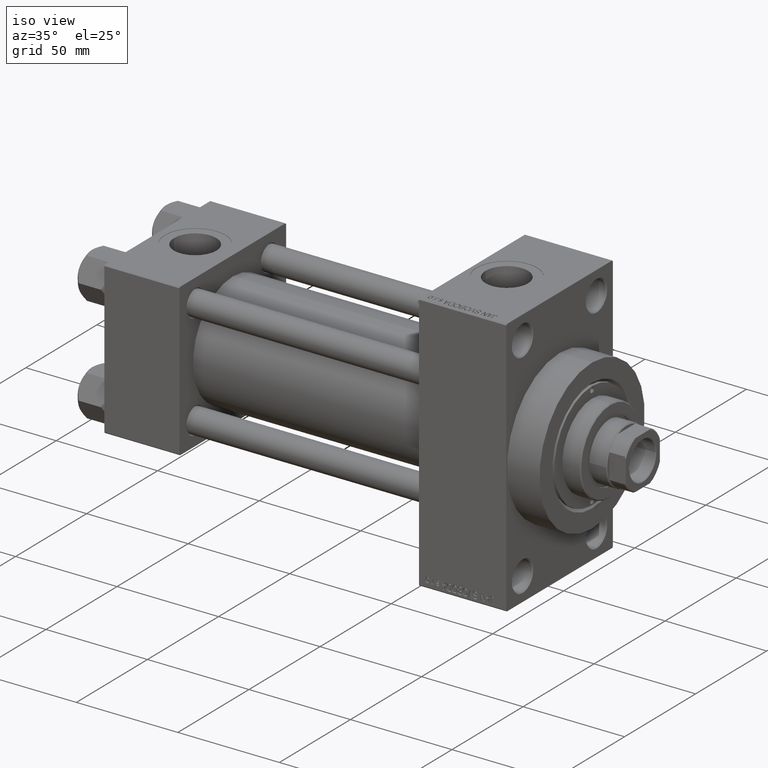
[diagram: clean part render]
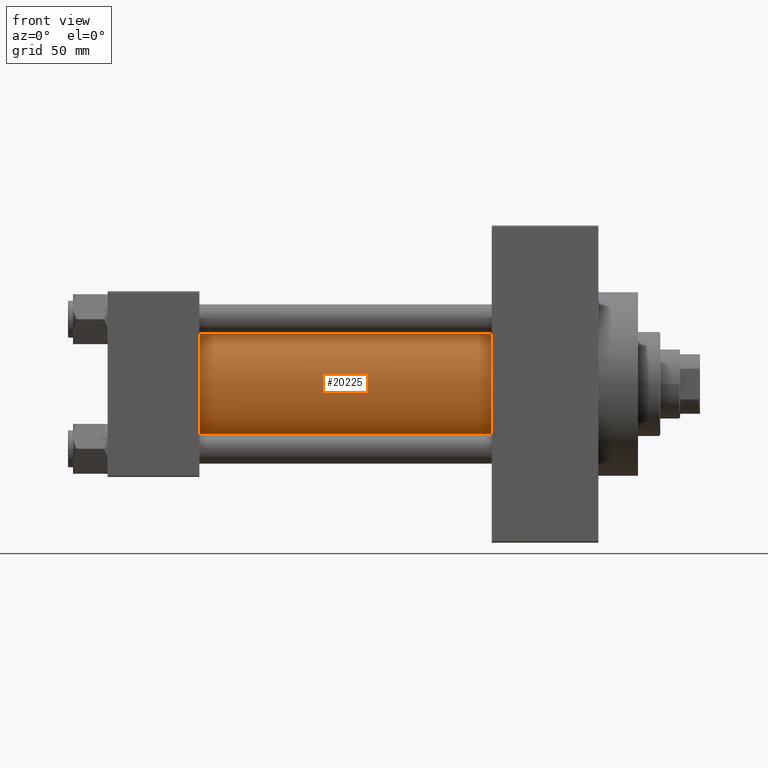
[diagram: tour spotlight — one face highlighted and labeled with its STEP entity id]
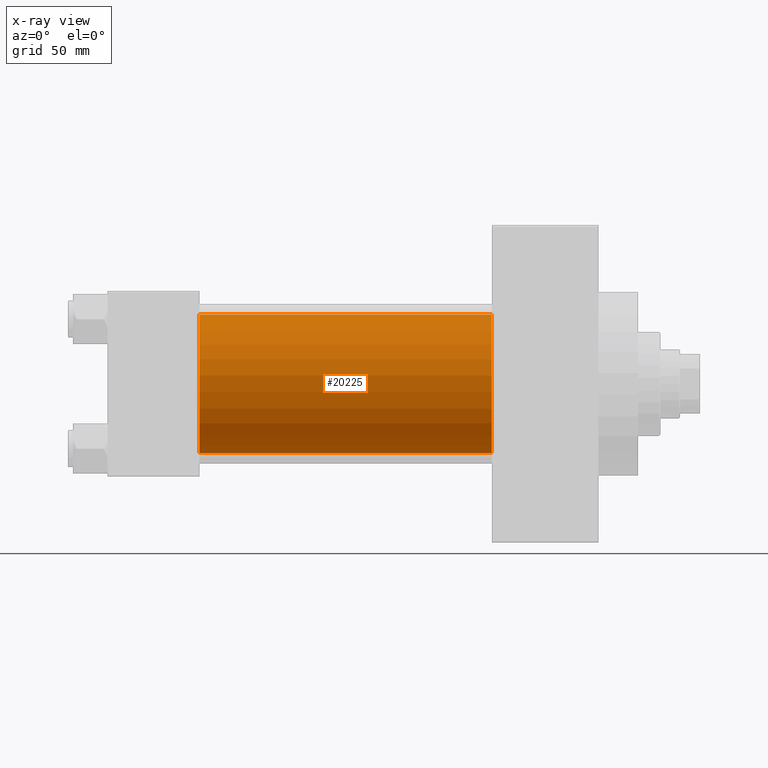
[diagram: x-ray of the same camera — body ghosted, this tour face saturated]
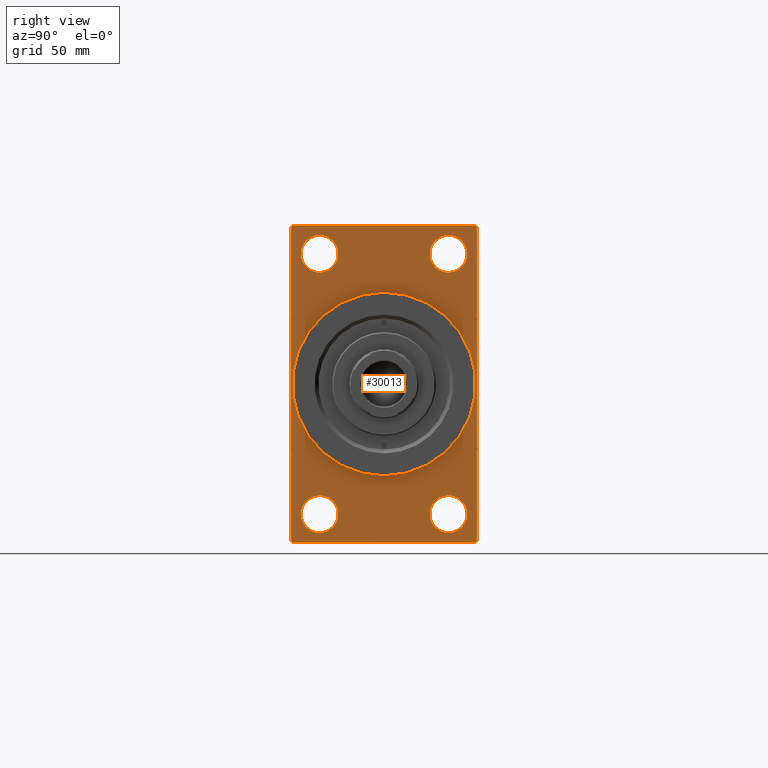
[diagram: tour spotlight — one face highlighted and labeled with its STEP entity id]
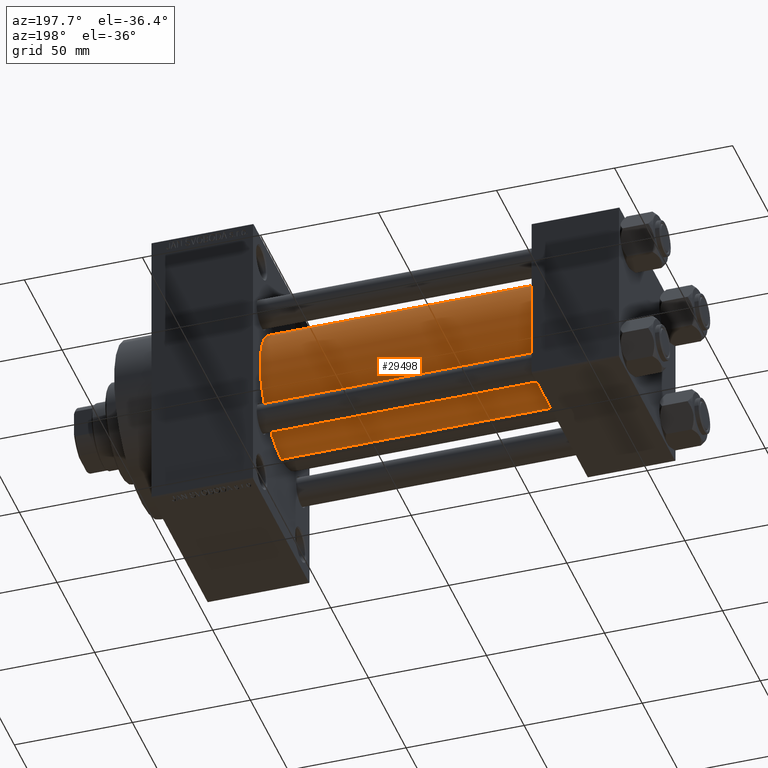
[diagram: tour spotlight — one face highlighted and labeled with its STEP entity id]
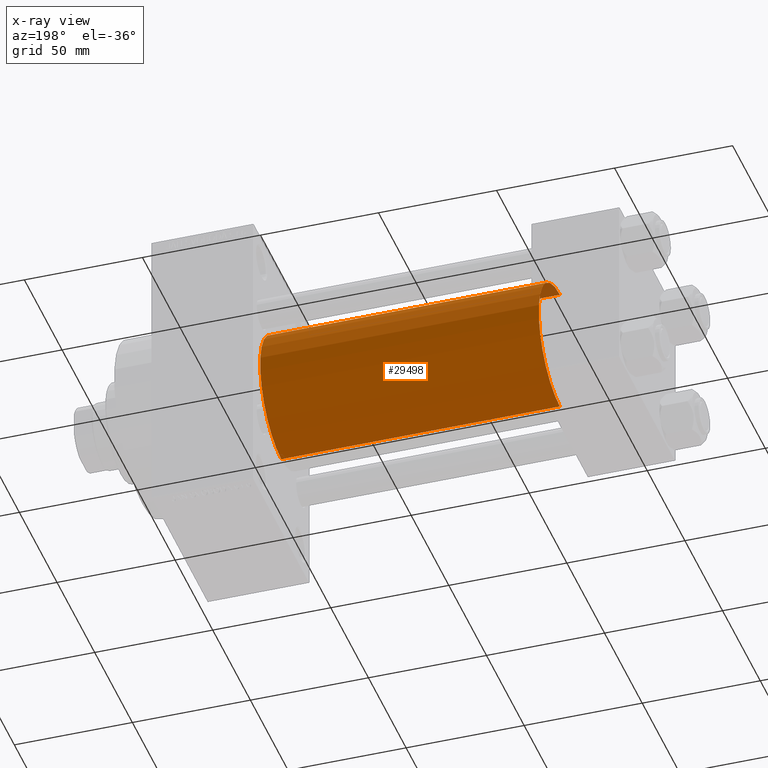
[diagram: x-ray of the same camera — body ghosted, this tour face saturated]
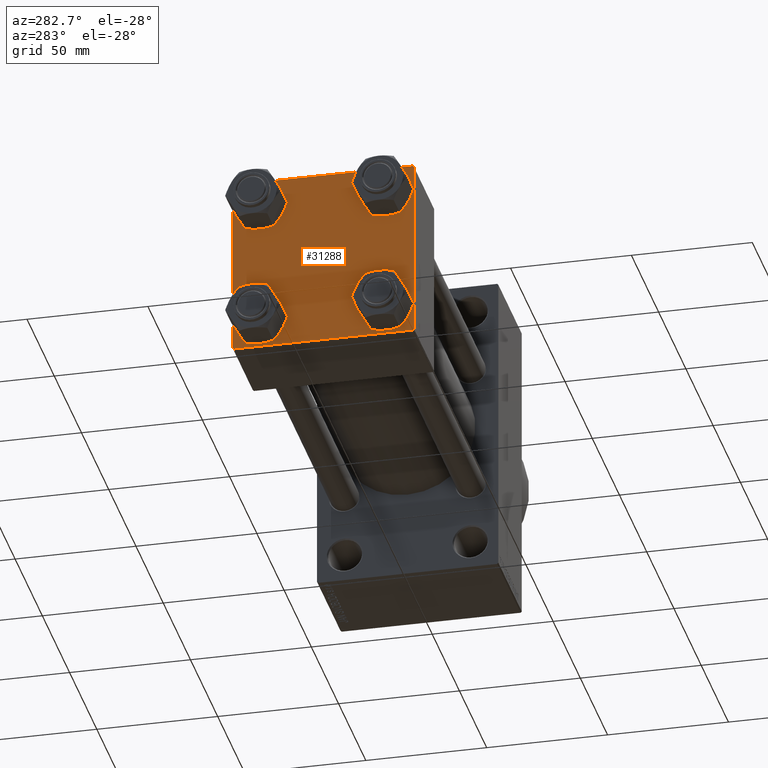
[diagram: tour spotlight — one face highlighted and labeled with its STEP entity id]
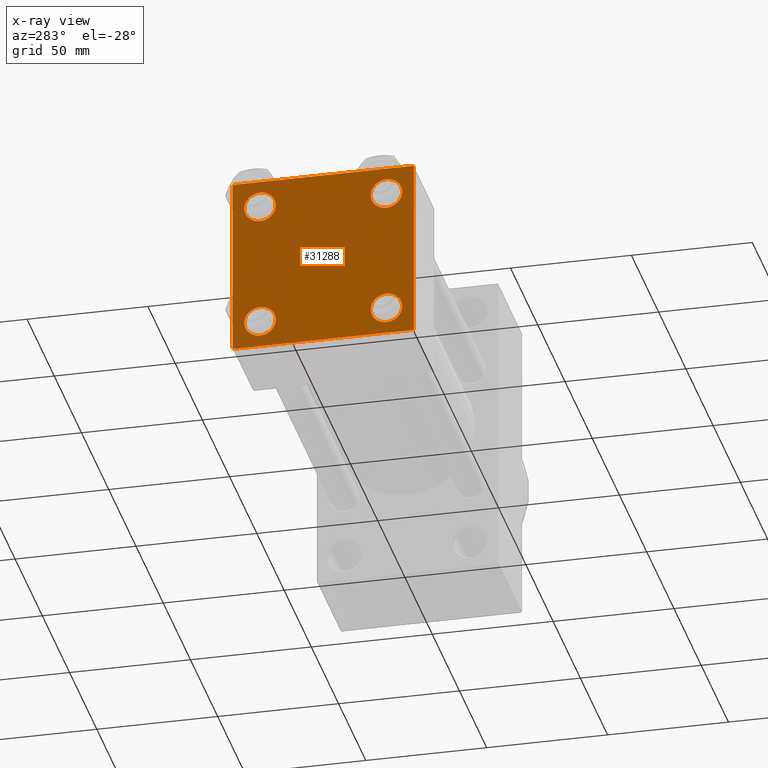
[diagram: x-ray of the same camera — body ghosted, this tour face saturated]
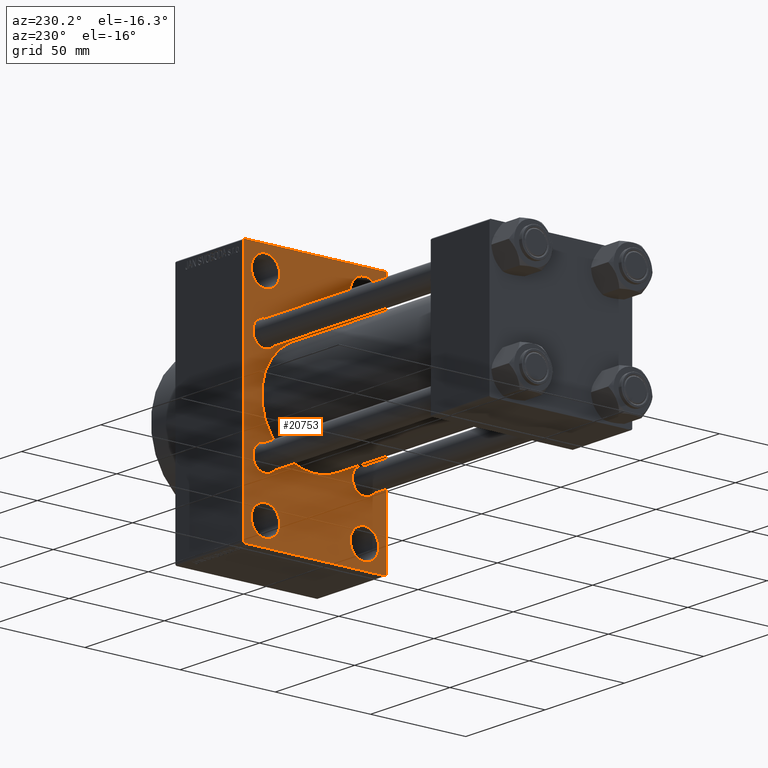
[diagram: tour spotlight — one face highlighted and labeled with its STEP entity id]
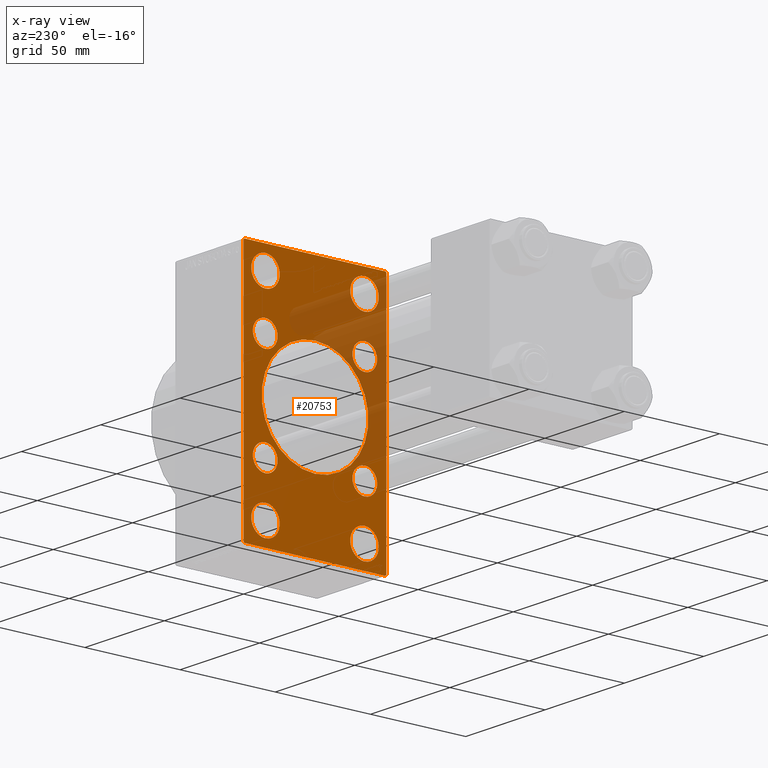
[diagram: x-ray of the same camera — body ghosted, this tour face saturated]
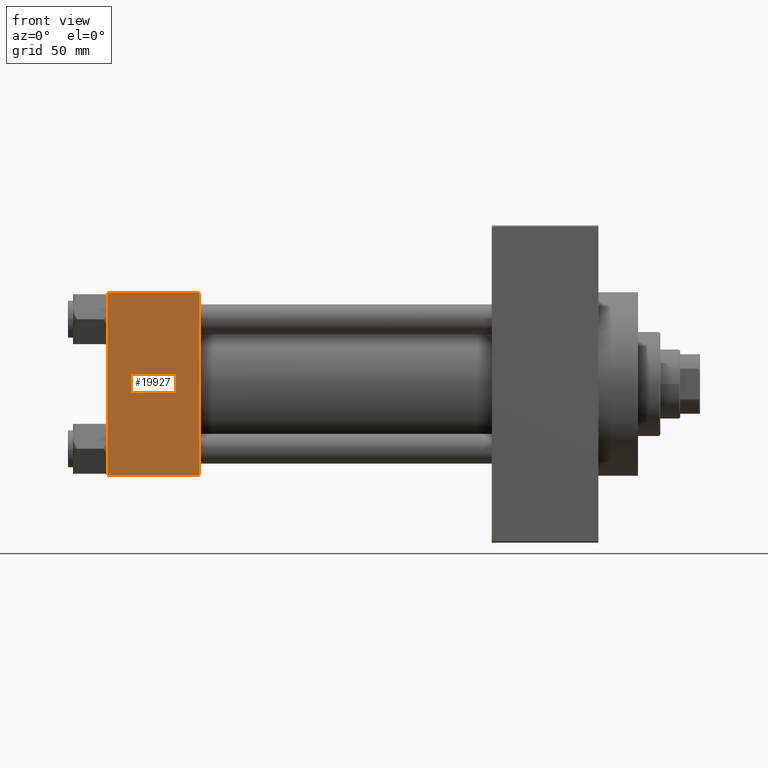
[diagram: tour spotlight — one face highlighted and labeled with its STEP entity id]
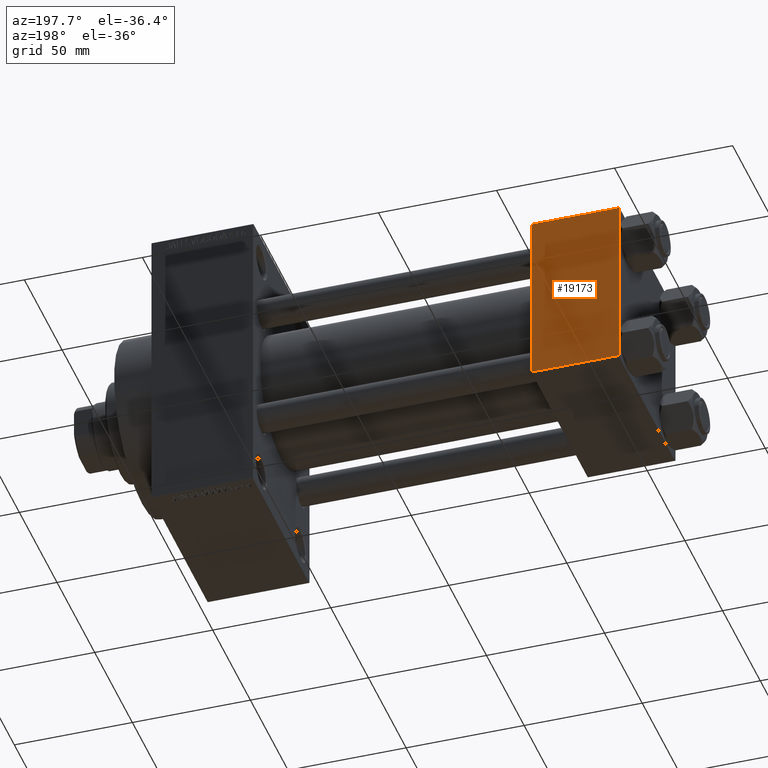
[diagram: tour spotlight — one face highlighted and labeled with its STEP entity id]
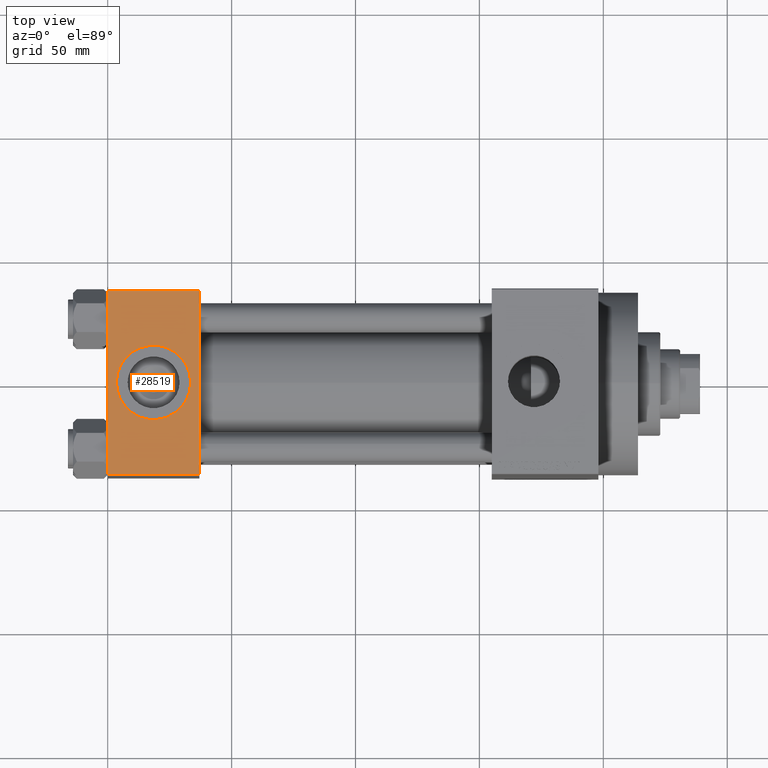
[diagram: tour spotlight — one face highlighted and labeled with its STEP entity id]
A machine part: a face-by-face anatomy tour. The part has 1111 B-rep faces; the first image is the clean iso view, then the 8 largest visible faces are spotlighted one at a time (largest first), each with its STEP entity span.

Face 1 — front view, entity #20225. An x-ray twin of the same camera follows (body ghosted, this face saturated) — the face is partly hidden behind the body. In plain terms, the highlighted cylindrical surface (partial cylindrical patch) has radius 28 mm, axis along (-1, -0, -0).
Definition (entity closure, byte-faithful):
#2490 = VECTOR ( 'NONE', #23240, 1000.000000000000000 ) ;
#3140 = EDGE_LOOP ( 'NONE', ( #29474, #17459, #18780, #27145 ) ) ;
#4573 = CARTESIAN_POINT ( 'NONE',  ( 37.00000000000000711, 8.269258236473784371E-16, -28.00000000000000000 ) ) ;
#4646 = VERTEX_POINT ( 'NONE', #19798 ) ;
#9424 = DIRECTION ( 'NONE',  ( 1.000000000000000000, -0.000000000000000000, 0.000000000000000000 ) ) ;
#10621 = VECTOR ( 'NONE', #47309, 1000.000000000000000 ) ;
#12377 = VERTEX_POINT ( 'NONE', #19681 ) ;
#13625 = EDGE_CURVE ( 'NONE', #26219, #12377, #41715, .T. ) ;
#14174 = CARTESIAN_POINT ( 'NONE',  ( 155.0000000000000000, -2.602085213965210642E-15, 28.00000000000000000 ) ) ;
#14936 = CIRCLE ( 'NONE', #16469, 28.00000000000000000 ) ;
#16469 = AXIS2_PLACEMENT_3D ( 'NONE', #42305, #9424, #35571 ) ;
#17459 = ORIENTED_EDGE ( 'NONE', *, *, #44069, .F. ) ;
#18780 = ORIENTED_EDGE ( 'NONE', *, *, #13625, .T. ) ;
#19681 = CARTESIAN_POINT ( 'NONE',  ( 37.00000000000000711, -2.602085213965210642E-15, 28.00000000000000000 ) ) ;
#19798 = CARTESIAN_POINT ( 'NONE',  ( 155.0000000000000000, 8.269258236473784371E-16, -28.00000000000000000 ) ) ;
#20225 = ADVANCED_FACE ( 'NONE', ( #40178 ), #32976, .T. ) ;
#20295 = LINE ( 'NONE', #32936, #10621 ) ;
#20363 = EDGE_CURVE ( 'NONE', #12377, #30250, #14936, .T. ) ;
#21107 = DIRECTION ( 'NONE',  ( 0.000000000000000000, 0.000000000000000000, -1.000000000000000000 ) ) ;
#23240 = DIRECTION ( 'NONE',  ( -1.000000000000000000, -0.000000000000000000, -0.000000000000000000 ) ) ;
#26219 = VERTEX_POINT ( 'NONE', #14174 ) ;
#27145 = ORIENTED_EDGE ( 'NONE', *, *, #20363, .T. ) ;
#29474 = ORIENTED_EDGE ( 'NONE', *, *, #32013, .F. ) ;
#29575 = AXIS2_PLACEMENT_3D ( 'NONE', #35521, #31923, #21107 ) ;
#29616 = CARTESIAN_POINT ( 'NONE',  ( 155.0000000000000000, -2.602085213965210642E-15, 0.000000000000000000 ) ) ;
#30250 = VERTEX_POINT ( 'NONE', #4573 ) ;
#31039 = AXIS2_PLACEMENT_3D ( 'NONE', #29616, #44235, #43532 ) ;
#31923 = DIRECTION ( 'NONE',  ( 1.000000000000000000, 0.000000000000000000, 0.000000000000000000 ) ) ;
#32013 = EDGE_CURVE ( 'NONE', #4646, #30250, #20295, .T. ) ;
#32936 = CARTESIAN_POINT ( 'NONE',  ( 155.0000000000000000, 8.269258236473784371E-16, -28.00000000000000000 ) ) ;
#32976 = CYLINDRICAL_SURFACE ( 'NONE', #31039, 28.00000000000000000 ) ;
#35521 = CARTESIAN_POINT ( 'NONE',  ( 155.0000000000000000, -2.602085213965210642E-15, 0.000000000000000000 ) ) ;
#35571 = DIRECTION ( 'NONE',  ( 0.000000000000000000, 0.000000000000000000, 1.000000000000000000 ) ) ;
#40178 = FACE_OUTER_BOUND ( 'NONE', #3140, .T. ) ;
#41715 = LINE ( 'NONE', #45300, #2490 ) ;
#42305 = CARTESIAN_POINT ( 'NONE',  ( 37.00000000000000711, -2.602085213965210642E-15, 0.000000000000000000 ) ) ;
#43532 = DIRECTION ( 'NONE',  ( 0.000000000000000000, 0.000000000000000000, 1.000000000000000000 ) ) ;
#44069 = EDGE_CURVE ( 'NONE', #26219, #4646, #46407, .T. ) ;
#44235 = DIRECTION ( 'NONE',  ( -1.000000000000000000, -0.000000000000000000, -0.000000000000000000 ) ) ;
#45300 = CARTESIAN_POINT ( 'NONE',  ( 155.0000000000000000, -2.602085213965210642E-15, 28.00000000000000000 ) ) ;
#46407 = CIRCLE ( 'NONE', #29575, 28.00000000000000000 ) ;
#47309 = DIRECTION ( 'NONE',  ( -1.000000000000000000, -0.000000000000000000, -0.000000000000000000 ) ) ;

Face 2 — right view, entity #30013. In plain terms, the highlighted planar face has unit normal (-1, 0, 0).
Definition (entity closure, byte-faithful):
#223 = DIRECTION ( 'NONE',  ( -1.000000000000000000, 0.000000000000000000, -0.000000000000000000 ) ) ;
#910 = VECTOR ( 'NONE', #5536, 1000.000000000000000 ) ;
#925 = VECTOR ( 'NONE', #3416, 1000.000000000000114 ) ;
#968 = EDGE_CURVE ( 'NONE', #4322, #45931, #14522, .T. ) ;
#1048 = ORIENTED_EDGE ( 'NONE', *, *, #14542, .T. ) ;
#1319 = VERTEX_POINT ( 'NONE', #12809 ) ;
#1504 = ORIENTED_EDGE ( 'NONE', *, *, #13827, .T. ) ;
#2383 = CARTESIAN_POINT ( 'NONE',  ( 198.0000000000000000, 0.000000000000000000, 0.000000000000000000 ) ) ;
#2461 = ORIENTED_EDGE ( 'NONE', *, *, #968, .T. ) ;
#2722 = CARTESIAN_POINT ( 'NONE',  ( 198.0000000000000000, -25.99999999999999645, 45.00000000000002132 ) ) ;
#2938 = DIRECTION ( 'NONE',  ( 0.000000000000000000, -5.421010862427522170E-17, -1.000000000000000000 ) ) ;
#3029 = VERTEX_POINT ( 'NONE', #33124 ) ;
#3030 = DIRECTION ( 'NONE',  ( -1.000000000000000000, 0.000000000000000000, -0.000000000000000000 ) ) ;
#3173 = DIRECTION ( 'NONE',  ( -1.000000000000000000, 0.000000000000000000, -0.000000000000000000 ) ) ;
#3298 = CARTESIAN_POINT ( 'NONE',  ( 198.0000000000000000, 37.00000000000000000, 63.99999999999998579 ) ) ;
#3326 = EDGE_CURVE ( 'NONE', #46093, #20507, #26848, .T. ) ;
#3416 = DIRECTION ( 'NONE',  ( -0.000000000000000000, 0.7071067811865376918, 0.7071067811865573427 ) ) ;
#4056 = CARTESIAN_POINT ( 'NONE',  ( 198.0000000000000000, 26.00000000000000000, -52.49999999999999289 ) ) ;
#4183 = CARTESIAN_POINT ( 'NONE',  ( 198.0000000000000000, -37.49999999999999289, -63.50000000000002842 ) ) ;
#4250 = DIRECTION ( 'NONE',  ( 0.000000000000000000, -1.000000000000000000, -1.850371707708594563E-16 ) ) ;
#4322 = VERTEX_POINT ( 'NONE', #5944 ) ;
#4474 = ORIENTED_EDGE ( 'NONE', *, *, #7384, .T. ) ;
#4777 = CARTESIAN_POINT ( 'NONE',  ( 198.0000000000000000, 37.49999999999999289, -64.00000000000000000 ) ) ;
#4827 = ORIENTED_EDGE ( 'NONE', *, *, #19061, .T. ) ;
#4911 = EDGE_CURVE ( 'NONE', #12077, #30589, #10812, .T. ) ;
#5536 = DIRECTION ( 'NONE',  ( -0.000000000000000000, -0.7071067811865524577, -0.7071067811865426878 ) ) ;
#5702 = AXIS2_PLACEMENT_3D ( 'NONE', #39269, #3030, #47141 ) ;
#5816 = FACE_BOUND ( 'NONE', #35311, .T. ) ;
#5944 = CARTESIAN_POINT ( 'NONE',  ( 198.0000000000000000, 26.00000000000000000, -45.00000000000001421 ) ) ;
#5962 = ORIENTED_EDGE ( 'NONE', *, *, #4911, .T. ) ;
#6664 = DIRECTION ( 'NONE',  ( 0.000000000000000000, -0.7071067811865474617, 0.7071067811865474617 ) ) ;
#7117 = EDGE_CURVE ( 'NONE', #30589, #12077, #39254, .T. ) ;
#7365 = LINE ( 'NONE', #3298, #9363 ) ;
#7384 = EDGE_CURVE ( 'NONE', #37912, #9693, #43708, .T. ) ;
#7545 = ORIENTED_EDGE ( 'NONE', *, *, #3326, .T. ) ;
#7863 = ORIENTED_EDGE ( 'NONE', *, *, #14093, .T. ) ;
#7967 = CARTESIAN_POINT ( 'NONE',  ( 198.0000000000000000, 4.531193156845206793E-15, -37.00000000000000000 ) ) ;
#8250 = DIRECTION ( 'NONE',  ( 0.000000000000000000, 0.000000000000000000, 1.000000000000000000 ) ) ;
#8368 = DIRECTION ( 'NONE',  ( 0.000000000000000000, 0.000000000000000000, 1.000000000000000000 ) ) ;
#9363 = VECTOR ( 'NONE', #6664, 1000.000000000000114 ) ;
#9640 = FACE_OUTER_BOUND ( 'NONE', #43651, .T. ) ;
#9693 = VERTEX_POINT ( 'NONE', #36258 ) ;
#9775 = EDGE_CURVE ( 'NONE', #3029, #31455, #26368, .T. ) ;
#10223 = EDGE_LOOP ( 'NONE', ( #35728, #2461 ) ) ;
#10369 = CARTESIAN_POINT ( 'NONE',  ( 198.0000000000000000, 37.49999999999999289, -63.50000000000001421 ) ) ;
#10561 = DIRECTION ( 'NONE',  ( 1.000000000000000000, 0.000000000000000000, 0.000000000000000000 ) ) ;
#10760 = DIRECTION ( 'NONE',  ( -1.000000000000000000, 0.000000000000000000, -0.000000000000000000 ) ) ;
#10812 = CIRCLE ( 'NONE', #13865, 7.499999999999978684 ) ;
#11426 = EDGE_LOOP ( 'NONE', ( #42072, #20547 ) ) ;
#11976 = CIRCLE ( 'NONE', #38015, 37.00000000000000000 ) ;
#12077 = VERTEX_POINT ( 'NONE', #28595 ) ;
#12143 = EDGE_LOOP ( 'NONE', ( #5962, #44498 ) ) ;
#12480 = EDGE_CURVE ( 'NONE', #1319, #12593, #46287, .T. ) ;
#12528 = EDGE_CURVE ( 'NONE', #31455, #3029, #35406, .T. ) ;
#12593 = VERTEX_POINT ( 'NONE', #37154 ) ;
#12809 = CARTESIAN_POINT ( 'NONE',  ( 198.0000000000000000, -37.00000000000001421, 63.99999999999997158 ) ) ;
#13012 = FACE_BOUND ( 'NONE', #12143, .T. ) ;
#13079 = CARTESIAN_POINT ( 'NONE',  ( 198.0000000000000000, -25.99999999999999645, 52.50000000000000000 ) ) ;
#13482 = DIRECTION ( 'NONE',  ( -1.000000000000000000, 0.000000000000000000, -0.000000000000000000 ) ) ;
#13801 = ORIENTED_EDGE ( 'NONE', *, *, #17666, .F. ) ;
#13827 = EDGE_CURVE ( 'NONE', #28111, #23894, #7365, .T. ) ;
#13865 = AXIS2_PLACEMENT_3D ( 'NONE', #24004, #35276, #43171 ) ;
#14093 = EDGE_CURVE ( 'NONE', #17825, #23969, #34087, .T. ) ;
#14156 = VECTOR ( 'NONE', #4250, 1000.000000000000000 ) ;
#14522 = CIRCLE ( 'NONE', #27646, 7.499999999999978684 ) ;
#14542 = EDGE_CURVE ( 'NONE', #20507, #46093, #16313, .T. ) ;
#15062 = CARTESIAN_POINT ( 'NONE',  ( 198.0000000000000000, 0.000000000000000000, 37.00000000000000000 ) ) ;
#15465 = AXIS2_PLACEMENT_3D ( 'NONE', #17731, #223, #46988 ) ;
#15653 = EDGE_CURVE ( 'NONE', #28111, #9693, #17324, .T. ) ;
#16313 = CIRCLE ( 'NONE', #36998, 7.499999999999978684 ) ;
#16360 = FACE_BOUND ( 'NONE', #11426, .T. ) ;
#16668 = DIRECTION ( 'NONE',  ( -1.000000000000000000, 0.000000000000000000, -0.000000000000000000 ) ) ;
#17069 = CARTESIAN_POINT ( 'NONE',  ( 198.0000000000000000, 0.000000000000000000, 0.000000000000000000 ) ) ;
#17324 = LINE ( 'NONE', #31974, #30909 ) ;
#17336 = EDGE_CURVE ( 'NONE', #12593, #17825, #38416, .T. ) ;
#17666 = EDGE_CURVE ( 'NONE', #37912, #23969, #33331, .T. ) ;
#17731 = CARTESIAN_POINT ( 'NONE',  ( 198.0000000000000000, 26.00000000000000000, 52.49999999999999289 ) ) ;
#17756 = CARTESIAN_POINT ( 'NONE',  ( 198.0000000000000000, 37.50000000000000000, 63.49999999999998579 ) ) ;
#17825 = VERTEX_POINT ( 'NONE', #4183 ) ;
#18103 = CARTESIAN_POINT ( 'NONE',  ( 198.0000000000000000, -25.99999999999999645, -45.00000000000001421 ) ) ;
#18567 = EDGE_CURVE ( 'NONE', #46357, #46489, #34063, .T. ) ;
#19061 = EDGE_CURVE ( 'NONE', #23894, #1319, #19339, .T. ) ;
#19339 = LINE ( 'NONE', #22956, #14156 ) ;
#20024 = DIRECTION ( 'NONE',  ( 0.000000000000000000, 0.000000000000000000, 1.000000000000000000 ) ) ;
#20507 = VERTEX_POINT ( 'NONE', #32440 ) ;
#20547 = ORIENTED_EDGE ( 'NONE', *, *, #9775, .T. ) ;
#20594 = EDGE_CURVE ( 'NONE', #45931, #4322, #30331, .T. ) ;
#22046 = DIRECTION ( 'NONE',  ( -1.000000000000000000, 0.000000000000000000, -0.000000000000000000 ) ) ;
#22956 = CARTESIAN_POINT ( 'NONE',  ( 198.0000000000000000, 37.50000000000000000, 63.99999999999998579 ) ) ;
#23357 = CARTESIAN_POINT ( 'NONE',  ( 198.0000000000000000, -25.99999999999999645, -52.49999999999999289 ) ) ;
#23854 = CARTESIAN_POINT ( 'NONE',  ( 198.0000000000000000, 37.00000000000002132, -64.00000000000000000 ) ) ;
#23894 = VERTEX_POINT ( 'NONE', #35096 ) ;
#23925 = VECTOR ( 'NONE', #41521, 1000.000000000000000 ) ;
#23969 = VERTEX_POINT ( 'NONE', #33142 ) ;
#24004 = CARTESIAN_POINT ( 'NONE',  ( 198.0000000000000000, -25.99999999999999645, -52.49999999999999289 ) ) ;
#24915 = DIRECTION ( 'NONE',  ( 1.000000000000000000, 0.000000000000000000, 0.000000000000000000 ) ) ;
#25193 = DIRECTION ( 'NONE',  ( 0.000000000000000000, 0.000000000000000000, -1.000000000000000000 ) ) ;
#25397 = DIRECTION ( 'NONE',  ( 0.000000000000000000, 0.000000000000000000, 1.000000000000000000 ) ) ;
#26368 = CIRCLE ( 'NONE', #5702, 7.499999999999978684 ) ;
#26473 = DIRECTION ( 'NONE',  ( -1.000000000000000000, 0.000000000000000000, -0.000000000000000000 ) ) ;
#26848 = CIRCLE ( 'NONE', #36033, 7.499999999999978684 ) ;
#27421 = FACE_BOUND ( 'NONE', #38651, .T. ) ;
#27646 = AXIS2_PLACEMENT_3D ( 'NONE', #29957, #22046, #8368 ) ;
#27768 = ORIENTED_EDGE ( 'NONE', *, *, #17336, .T. ) ;
#27861 = VECTOR ( 'NONE', #35284, 1000.000000000000000 ) ;
#28111 = VERTEX_POINT ( 'NONE', #17756 ) ;
#28121 = DIRECTION ( 'NONE',  ( -0.000000000000000000, 0.000000000000000000, 1.000000000000000000 ) ) ;
#28595 = CARTESIAN_POINT ( 'NONE',  ( 198.0000000000000000, -25.99999999999999645, -59.99999999999997158 ) ) ;
#29957 = CARTESIAN_POINT ( 'NONE',  ( 198.0000000000000000, 26.00000000000000000, -52.49999999999999289 ) ) ;
#30013 = ADVANCED_FACE ( 'NONE', ( #5816, #13012, #42051, #16360, #27421, #9640 ), #31954, .F. ) ;
#30331 = CIRCLE ( 'NONE', #35670, 7.499999999999978684 ) ;
#30496 = AXIS2_PLACEMENT_3D ( 'NONE', #17069, #13482, #28121 ) ;
#30589 = VERTEX_POINT ( 'NONE', #18103 ) ;
#30811 = CARTESIAN_POINT ( 'NONE',  ( 198.0000000000000000, 26.00000000000000000, -59.99999999999997158 ) ) ;
#30909 = VECTOR ( 'NONE', #2938, 1000.000000000000000 ) ;
#31083 = ORIENTED_EDGE ( 'NONE', *, *, #15653, .F. ) ;
#31455 = VERTEX_POINT ( 'NONE', #37422 ) ;
#31954 = PLANE ( 'NONE',  #30496 ) ;
#31974 = CARTESIAN_POINT ( 'NONE',  ( 198.0000000000000000, 37.50000000000000000, 63.99999999999998579 ) ) ;
#32440 = CARTESIAN_POINT ( 'NONE',  ( 198.0000000000000000, -25.99999999999999645, 59.99999999999997868 ) ) ;
#32552 = AXIS2_PLACEMENT_3D ( 'NONE', #35762, #10561, #25193 ) ;
#33124 = CARTESIAN_POINT ( 'NONE',  ( 198.0000000000000000, 26.00000000000000000, 59.99999999999997158 ) ) ;
#33142 = CARTESIAN_POINT ( 'NONE',  ( 198.0000000000000000, -36.99999999999999289, -64.00000000000001421 ) ) ;
#33331 = LINE ( 'NONE', #4777, #46264 ) ;
#33995 = ORIENTED_EDGE ( 'NONE', *, *, #18567, .F. ) ;
#34063 = CIRCLE ( 'NONE', #32552, 37.00000000000000000 ) ;
#34087 = LINE ( 'NONE', #37684, #23925 ) ;
#35096 = CARTESIAN_POINT ( 'NONE',  ( 198.0000000000000000, 37.00000000000000000, 63.99999999999998579 ) ) ;
#35276 = DIRECTION ( 'NONE',  ( -1.000000000000000000, 0.000000000000000000, -0.000000000000000000 ) ) ;
#35284 = DIRECTION ( 'NONE',  ( 0.000000000000000000, 0.000000000000000000, -1.000000000000000000 ) ) ;
#35311 = EDGE_LOOP ( 'NONE', ( #7545, #1048 ) ) ;
#35406 = CIRCLE ( 'NONE', #15465, 7.499999999999978684 ) ;
#35670 = AXIS2_PLACEMENT_3D ( 'NONE', #4056, #3173, #35811 ) ;
#35728 = ORIENTED_EDGE ( 'NONE', *, *, #20594, .T. ) ;
#35762 = CARTESIAN_POINT ( 'NONE',  ( 198.0000000000000000, 0.000000000000000000, 0.000000000000000000 ) ) ;
#35811 = DIRECTION ( 'NONE',  ( 0.000000000000000000, 0.000000000000000000, 1.000000000000000000 ) ) ;
#35929 = ORIENTED_EDGE ( 'NONE', *, *, #12480, .T. ) ;
#36033 = AXIS2_PLACEMENT_3D ( 'NONE', #40509, #10760, #25397 ) ;
#36258 = CARTESIAN_POINT ( 'NONE',  ( 198.0000000000000000, 37.49999999999999289, -63.50000000000001421 ) ) ;
#36941 = AXIS2_PLACEMENT_3D ( 'NONE', #23357, #26473, #8250 ) ;
#36998 = AXIS2_PLACEMENT_3D ( 'NONE', #13079, #16668, #20024 ) ;
#37154 = CARTESIAN_POINT ( 'NONE',  ( 198.0000000000000000, -37.49999999999999289, 63.50000000000000000 ) ) ;
#37422 = CARTESIAN_POINT ( 'NONE',  ( 198.0000000000000000, 26.00000000000000000, 45.00000000000001421 ) ) ;
#37684 = CARTESIAN_POINT ( 'NONE',  ( 198.0000000000000000, -36.99999999999999289, -64.00000000000001421 ) ) ;
#37912 = VERTEX_POINT ( 'NONE', #23854 ) ;
#38015 = AXIS2_PLACEMENT_3D ( 'NONE', #2383, #24915, #39805 ) ;
#38409 = CARTESIAN_POINT ( 'NONE',  ( 198.0000000000000000, -37.49999999999999289, 63.50000000000000000 ) ) ;
#38416 = LINE ( 'NONE', #42720, #27861 ) ;
#38651 = EDGE_LOOP ( 'NONE', ( #47216, #33995 ) ) ;
#39254 = CIRCLE ( 'NONE', #36941, 7.499999999999978684 ) ;
#39269 = CARTESIAN_POINT ( 'NONE',  ( 198.0000000000000000, 26.00000000000000000, 52.49999999999999289 ) ) ;
#39805 = DIRECTION ( 'NONE',  ( 0.000000000000000000, 0.000000000000000000, -1.000000000000000000 ) ) ;
#40509 = CARTESIAN_POINT ( 'NONE',  ( 198.0000000000000000, -25.99999999999999645, 52.50000000000000000 ) ) ;
#40533 = DIRECTION ( 'NONE',  ( 0.000000000000000000, -1.000000000000000000, -1.850371707708594563E-16 ) ) ;
#41521 = DIRECTION ( 'NONE',  ( 0.000000000000000000, 0.7071067811865573427, -0.7071067811865378028 ) ) ;
#42051 = FACE_BOUND ( 'NONE', #10223, .T. ) ;
#42072 = ORIENTED_EDGE ( 'NONE', *, *, #12528, .T. ) ;
#42720 = CARTESIAN_POINT ( 'NONE',  ( 198.0000000000000000, -37.49999999999999289, 63.99999999999997158 ) ) ;
#43171 = DIRECTION ( 'NONE',  ( 0.000000000000000000, 0.000000000000000000, 1.000000000000000000 ) ) ;
#43516 = EDGE_CURVE ( 'NONE', #46489, #46357, #11976, .T. ) ;
#43651 = EDGE_LOOP ( 'NONE', ( #27768, #7863, #13801, #4474, #31083, #1504, #4827, #35929 ) ) ;
#43708 = LINE ( 'NONE', #10369, #925 ) ;
#44498 = ORIENTED_EDGE ( 'NONE', *, *, #7117, .T. ) ;
#45931 = VERTEX_POINT ( 'NONE', #30811 ) ;
#46093 = VERTEX_POINT ( 'NONE', #2722 ) ;
#46264 = VECTOR ( 'NONE', #40533, 1000.000000000000000 ) ;
#46287 = LINE ( 'NONE', #38409, #910 ) ;
#46357 = VERTEX_POINT ( 'NONE', #7967 ) ;
#46489 = VERTEX_POINT ( 'NONE', #15062 ) ;
#46988 = DIRECTION ( 'NONE',  ( 0.000000000000000000, 0.000000000000000000, 1.000000000000000000 ) ) ;
#47141 = DIRECTION ( 'NONE',  ( 0.000000000000000000, 0.000000000000000000, 1.000000000000000000 ) ) ;
#47216 = ORIENTED_EDGE ( 'NONE', *, *, #43516, .F. ) ;

Face 3 — auxiliary view, entity #29498. An x-ray twin of the same camera follows (body ghosted, this face saturated) — the face is partly hidden behind the body. In plain terms, the highlighted cylindrical surface (partial cylindrical patch) has radius 28 mm, axis along (-1, -0, -0).
Definition (entity closure, byte-faithful):
#2490 = VECTOR ( 'NONE', #23240, 1000.000000000000000 ) ;
#4573 = CARTESIAN_POINT ( 'NONE',  ( 37.00000000000000711, 8.269258236473784371E-16, -28.00000000000000000 ) ) ;
#4646 = VERTEX_POINT ( 'NONE', #19798 ) ;
#6153 = DIRECTION ( 'NONE',  ( -1.000000000000000000, -0.000000000000000000, -0.000000000000000000 ) ) ;
#6258 = ORIENTED_EDGE ( 'NONE', *, *, #32013, .T. ) ;
#6720 = AXIS2_PLACEMENT_3D ( 'NONE', #28231, #6153, #6868 ) ;
#6868 = DIRECTION ( 'NONE',  ( 0.000000000000000000, 0.000000000000000000, 1.000000000000000000 ) ) ;
#10621 = VECTOR ( 'NONE', #47309, 1000.000000000000000 ) ;
#10714 = DIRECTION ( 'NONE',  ( 1.000000000000000000, 0.000000000000000000, 0.000000000000000000 ) ) ;
#12377 = VERTEX_POINT ( 'NONE', #19681 ) ;
#12721 = CIRCLE ( 'NONE', #18822, 28.00000000000000000 ) ;
#13598 = CYLINDRICAL_SURFACE ( 'NONE', #6720, 28.00000000000000000 ) ;
#13625 = EDGE_CURVE ( 'NONE', #26219, #12377, #41715, .T. ) ;
#14174 = CARTESIAN_POINT ( 'NONE',  ( 155.0000000000000000, -2.602085213965210642E-15, 28.00000000000000000 ) ) ;
#15433 = DIRECTION ( 'NONE',  ( 0.000000000000000000, 0.000000000000000000, -1.000000000000000000 ) ) ;
#18822 = AXIS2_PLACEMENT_3D ( 'NONE', #46557, #31239, #46089 ) ;
#19573 = EDGE_LOOP ( 'NONE', ( #38707, #6258, #34138, #38883 ) ) ;
#19681 = CARTESIAN_POINT ( 'NONE',  ( 37.00000000000000711, -2.602085213965210642E-15, 28.00000000000000000 ) ) ;
#19798 = CARTESIAN_POINT ( 'NONE',  ( 155.0000000000000000, 8.269258236473784371E-16, -28.00000000000000000 ) ) ;
#20295 = LINE ( 'NONE', #32936, #10621 ) ;
#23240 = DIRECTION ( 'NONE',  ( -1.000000000000000000, -0.000000000000000000, -0.000000000000000000 ) ) ;
#24864 = FACE_OUTER_BOUND ( 'NONE', #19573, .T. ) ;
#26079 = EDGE_CURVE ( 'NONE', #30250, #12377, #12721, .T. ) ;
#26219 = VERTEX_POINT ( 'NONE', #14174 ) ;
#27937 = CIRCLE ( 'NONE', #36401, 28.00000000000000000 ) ;
#28231 = CARTESIAN_POINT ( 'NONE',  ( 155.0000000000000000, -2.602085213965210642E-15, 0.000000000000000000 ) ) ;
#29498 = ADVANCED_FACE ( 'NONE', ( #24864 ), #13598, .T. ) ;
#30250 = VERTEX_POINT ( 'NONE', #4573 ) ;
#31239 = DIRECTION ( 'NONE',  ( 1.000000000000000000, -0.000000000000000000, 0.000000000000000000 ) ) ;
#32013 = EDGE_CURVE ( 'NONE', #4646, #30250, #20295, .T. ) ;
#32936 = CARTESIAN_POINT ( 'NONE',  ( 155.0000000000000000, 8.269258236473784371E-16, -28.00000000000000000 ) ) ;
#34138 = ORIENTED_EDGE ( 'NONE', *, *, #26079, .T. ) ;
#36401 = AXIS2_PLACEMENT_3D ( 'NONE', #44926, #10714, #15433 ) ;
#38707 = ORIENTED_EDGE ( 'NONE', *, *, #41159, .F. ) ;
#38883 = ORIENTED_EDGE ( 'NONE', *, *, #13625, .F. ) ;
#41159 = EDGE_CURVE ( 'NONE', #4646, #26219, #27937, .T. ) ;
#41715 = LINE ( 'NONE', #45300, #2490 ) ;
#44926 = CARTESIAN_POINT ( 'NONE',  ( 155.0000000000000000, -2.602085213965210642E-15, 0.000000000000000000 ) ) ;
#45300 = CARTESIAN_POINT ( 'NONE',  ( 155.0000000000000000, -2.602085213965210642E-15, 28.00000000000000000 ) ) ;
#46089 = DIRECTION ( 'NONE',  ( 0.000000000000000000, 0.000000000000000000, 1.000000000000000000 ) ) ;
#46557 = CARTESIAN_POINT ( 'NONE',  ( 37.00000000000000711, -2.602085213965210642E-15, 0.000000000000000000 ) ) ;
#47309 = DIRECTION ( 'NONE',  ( -1.000000000000000000, -0.000000000000000000, -0.000000000000000000 ) ) ;

Face 4 — auxiliary view, entity #31288. An x-ray twin of the same camera follows (body ghosted, this face saturated) — the face is partly hidden behind the body. In plain terms, the highlighted planar face has unit normal (-1, 0, 0).
Definition (entity closure, byte-faithful):
#499 = ORIENTED_EDGE ( 'NONE', *, *, #45350, .T. ) ;
#718 = ORIENTED_EDGE ( 'NONE', *, *, #20267, .T. ) ;
#992 = ORIENTED_EDGE ( 'NONE', *, *, #22424, .T. ) ;
#1027 = CARTESIAN_POINT ( 'NONE',  ( 0.000000000000000000, 37.24999999999998579, -37.24999999999998579 ) ) ;
#1059 = CARTESIAN_POINT ( 'NONE',  ( 0.000000000000000000, 26.14999999999999858, 19.64999999999998437 ) ) ;
#1182 = ORIENTED_EDGE ( 'NONE', *, *, #28335, .T. ) ;
#1186 = CIRCLE ( 'NONE', #44051, 6.500000000000023093 ) ;
#1266 = CARTESIAN_POINT ( 'NONE',  ( 0.000000000000000000, 26.14999999999999858, -19.64999999999998792 ) ) ;
#2656 = FACE_BOUND ( 'NONE', #28702, .T. ) ;
#2919 = CARTESIAN_POINT ( 'NONE',  ( 0.000000000000000000, -26.14999999999999147, -26.15000000000000924 ) ) ;
#3279 = CARTESIAN_POINT ( 'NONE',  ( 0.000000000000000000, 36.99999999999999289, 37.50000000000000000 ) ) ;
#3368 = PLANE ( 'NONE',  #38176 ) ;
#3481 = LINE ( 'NONE', #39244, #28641 ) ;
#3535 = CARTESIAN_POINT ( 'NONE',  ( 0.000000000000000000, -37.50000000000000711, 37.49999999999999289 ) ) ;
#3652 = VECTOR ( 'NONE', #46726, 1000.000000000000000 ) ;
#3676 = AXIS2_PLACEMENT_3D ( 'NONE', #2919, #6987, #14185 ) ;
#3854 = ORIENTED_EDGE ( 'NONE', *, *, #40234, .F. ) ;
#4999 = DIRECTION ( 'NONE',  ( 1.000000000000000000, -0.000000000000000000, 0.000000000000000000 ) ) ;
#5024 = CARTESIAN_POINT ( 'NONE',  ( 0.000000000000000000, 26.14999999999999858, 26.15000000000000213 ) ) ;
#5163 = EDGE_CURVE ( 'NONE', #47439, #7039, #30196, .T. ) ;
#5419 = LINE ( 'NONE', #37343, #43796 ) ;
#6824 = EDGE_CURVE ( 'NONE', #7039, #39750, #5419, .T. ) ;
#6864 = EDGE_LOOP ( 'NONE', ( #1182, #8458, #33376, #17425, #46193, #20840, #3854, #38803 ) ) ;
#6888 = LINE ( 'NONE', #3535, #12273 ) ;
#6987 = DIRECTION ( 'NONE',  ( 1.000000000000000000, -0.000000000000000000, 0.000000000000000000 ) ) ;
#7039 = VERTEX_POINT ( 'NONE', #29146 ) ;
#7071 = AXIS2_PLACEMENT_3D ( 'NONE', #30679, #15327, #37412 ) ;
#7246 = CARTESIAN_POINT ( 'NONE',  ( 0.000000000000000000, -26.14999999999999147, 32.65000000000003411 ) ) ;
#7295 = CARTESIAN_POINT ( 'NONE',  ( -0.000000000000000000, -37.25000000000000000, 37.25000000000000000 ) ) ;
#8384 = DIRECTION ( 'NONE',  ( 0.000000000000000000, 0.000000000000000000, 1.000000000000000000 ) ) ;
#8458 = ORIENTED_EDGE ( 'NONE', *, *, #26009, .T. ) ;
#8528 = EDGE_LOOP ( 'NONE', ( #992, #718 ) ) ;
#8720 = DIRECTION ( 'NONE',  ( 1.000000000000000000, -0.000000000000000000, 0.000000000000000000 ) ) ;
#8758 = CARTESIAN_POINT ( 'NONE',  ( 0.000000000000000000, 36.99999999999997868, -37.50000000000000000 ) ) ;
#8960 = DIRECTION ( 'NONE',  ( 0.000000000000000000, 0.000000000000000000, 1.000000000000000000 ) ) ;
#9515 = CARTESIAN_POINT ( 'NONE',  ( 0.000000000000000000, -37.50000000000000000, -37.00000000000003553 ) ) ;
#10322 = FACE_OUTER_BOUND ( 'NONE', #6864, .T. ) ;
#10429 = LINE ( 'NONE', #7295, #28029 ) ;
#10867 = CIRCLE ( 'NONE', #43824, 6.500000000000015987 ) ;
#11356 = CARTESIAN_POINT ( 'NONE',  ( 0.000000000000000000, 37.49999999999999289, 37.50000000000000000 ) ) ;
#11613 = VERTEX_POINT ( 'NONE', #44280 ) ;
#12273 = VECTOR ( 'NONE', #39535, 1000.000000000000000 ) ;
#12729 = AXIS2_PLACEMENT_3D ( 'NONE', #20090, #4999, #37869 ) ;
#12862 = VERTEX_POINT ( 'NONE', #1059 ) ;
#12930 = DIRECTION ( 'NONE',  ( 1.000000000000000000, -0.000000000000000000, 0.000000000000000000 ) ) ;
#12972 = EDGE_CURVE ( 'NONE', #24868, #26010, #10867, .T. ) ;
#13677 = EDGE_CURVE ( 'NONE', #26010, #24868, #29305, .T. ) ;
#14160 = DIRECTION ( 'NONE',  ( -0.000000000000000000, 0.000000000000000000, 1.000000000000000000 ) ) ;
#14185 = DIRECTION ( 'NONE',  ( 0.000000000000000000, 0.000000000000000000, 1.000000000000000000 ) ) ;
#14267 = CARTESIAN_POINT ( 'NONE',  ( 0.000000000000000000, -26.14999999999999147, 26.15000000000000924 ) ) ;
#14504 = DIRECTION ( 'NONE',  ( 1.000000000000000000, -0.000000000000000000, 0.000000000000000000 ) ) ;
#14742 = ORIENTED_EDGE ( 'NONE', *, *, #12972, .T. ) ;
#14750 = DIRECTION ( 'NONE',  ( 1.000000000000000000, -0.000000000000000000, 0.000000000000000000 ) ) ;
#15327 = DIRECTION ( 'NONE',  ( 1.000000000000000000, -0.000000000000000000, 0.000000000000000000 ) ) ;
#15548 = ORIENTED_EDGE ( 'NONE', *, *, #30032, .T. ) ;
#15649 = DIRECTION ( 'NONE',  ( -0.000000000000000000, -0.7071067811865474617, -0.7071067811865474617 ) ) ;
#15729 = VERTEX_POINT ( 'NONE', #7246 ) ;
#15932 = EDGE_LOOP ( 'NONE', ( #499, #29250 ) ) ;
#16031 = DIRECTION ( 'NONE',  ( 0.000000000000000000, -1.000000000000000000, -9.251858538542972814E-17 ) ) ;
#16111 = CARTESIAN_POINT ( 'NONE',  ( 0.000000000000000000, 26.14999999999999858, 32.65000000000002700 ) ) ;
#16331 = EDGE_LOOP ( 'NONE', ( #47457, #15548 ) ) ;
#16508 = CIRCLE ( 'NONE', #41911, 6.500000000000023093 ) ;
#16528 = EDGE_CURVE ( 'NONE', #27512, #39692, #3481, .T. ) ;
#17425 = ORIENTED_EDGE ( 'NONE', *, *, #6824, .T. ) ;
#18187 = CARTESIAN_POINT ( 'NONE',  ( 0.000000000000000000, 37.49999999999999289, -36.99999999999998579 ) ) ;
#18911 = CARTESIAN_POINT ( 'NONE',  ( 0.000000000000000000, 37.49999999999999289, -37.50000000000000000 ) ) ;
#19233 = LINE ( 'NONE', #1027, #38006 ) ;
#19710 = DIRECTION ( 'NONE',  ( 0.000000000000000000, 0.000000000000000000, 1.000000000000000000 ) ) ;
#20090 = CARTESIAN_POINT ( 'NONE',  ( 0.000000000000000000, -26.14999999999999147, 26.15000000000000924 ) ) ;
#20267 = EDGE_CURVE ( 'NONE', #37802, #15729, #1186, .T. ) ;
#20840 = ORIENTED_EDGE ( 'NONE', *, *, #24991, .T. ) ;
#21067 = LINE ( 'NONE', #28280, #3652 ) ;
#21111 = FACE_BOUND ( 'NONE', #15932, .T. ) ;
#21352 = FACE_BOUND ( 'NONE', #8528, .T. ) ;
#21697 = DIRECTION ( 'NONE',  ( 0.000000000000000000, 0.7071067811865474617, -0.7071067811865474617 ) ) ;
#22182 = CARTESIAN_POINT ( 'NONE',  ( 0.000000000000000000, -26.14999999999999147, -26.15000000000000924 ) ) ;
#22424 = EDGE_CURVE ( 'NONE', #15729, #37802, #33402, .T. ) ;
#23415 = VERTEX_POINT ( 'NONE', #18187 ) ;
#24398 = VERTEX_POINT ( 'NONE', #25412 ) ;
#24868 = VERTEX_POINT ( 'NONE', #41888 ) ;
#24991 = EDGE_CURVE ( 'NONE', #11613, #44676, #10429, .T. ) ;
#25019 = CIRCLE ( 'NONE', #40370, 6.500000000000023093 ) ;
#25412 = CARTESIAN_POINT ( 'NONE',  ( 0.000000000000000000, -26.14999999999999147, -32.65000000000002700 ) ) ;
#26009 = EDGE_CURVE ( 'NONE', #23415, #47439, #19233, .T. ) ;
#26010 = VERTEX_POINT ( 'NONE', #1266 ) ;
#27512 = VERTEX_POINT ( 'NONE', #3279 ) ;
#28029 = VECTOR ( 'NONE', #30080, 1000.000000000000114 ) ;
#28280 = CARTESIAN_POINT ( 'NONE',  ( 0.000000000000000000, 37.49999999999999289, 37.50000000000000000 ) ) ;
#28335 = EDGE_CURVE ( 'NONE', #39692, #23415, #21067, .T. ) ;
#28641 = VECTOR ( 'NONE', #21697, 1000.000000000000114 ) ;
#28702 = EDGE_LOOP ( 'NONE', ( #37507, #14742 ) ) ;
#29146 = CARTESIAN_POINT ( 'NONE',  ( 0.000000000000000000, -37.00000000000002132, -37.50000000000000711 ) ) ;
#29250 = ORIENTED_EDGE ( 'NONE', *, *, #46213, .T. ) ;
#29305 = CIRCLE ( 'NONE', #7071, 6.500000000000015987 ) ;
#29708 = CIRCLE ( 'NONE', #3676, 6.500000000000015987 ) ;
#30032 = EDGE_CURVE ( 'NONE', #24398, #43148, #29708, .T. ) ;
#30046 = DIRECTION ( 'NONE',  ( 1.000000000000000000, -0.000000000000000000, 0.000000000000000000 ) ) ;
#30060 = DIRECTION ( 'NONE',  ( 0.000000000000000000, -1.000000000000000000, -9.251858538542971581E-17 ) ) ;
#30080 = DIRECTION ( 'NONE',  ( -0.000000000000000000, 0.7071067811865474617, 0.7071067811865474617 ) ) ;
#30196 = LINE ( 'NONE', #18911, #35353 ) ;
#30679 = CARTESIAN_POINT ( 'NONE',  ( 0.000000000000000000, 26.14999999999999858, -26.15000000000000213 ) ) ;
#30757 = CARTESIAN_POINT ( 'NONE',  ( 0.000000000000000000, 26.14999999999999858, 26.15000000000000213 ) ) ;
#30847 = DIRECTION ( 'NONE',  ( 0.000000000000000000, -0.7071067811865524577, 0.7071067811865426878 ) ) ;
#31288 = ADVANCED_FACE ( 'NONE', ( #21352, #36006, #2656, #21111, #10322 ), #3368, .T. ) ;
#31942 = CARTESIAN_POINT ( 'NONE',  ( 0.000000000000000000, -26.14999999999999147, -19.64999999999999503 ) ) ;
#32164 = VERTEX_POINT ( 'NONE', #16111 ) ;
#33376 = ORIENTED_EDGE ( 'NONE', *, *, #5163, .T. ) ;
#33402 = CIRCLE ( 'NONE', #12729, 6.500000000000023093 ) ;
#33754 = CARTESIAN_POINT ( 'NONE',  ( 0.000000000000000000, -37.00000000000000711, 37.49999999999999289 ) ) ;
#34953 = EDGE_CURVE ( 'NONE', #11613, #39750, #6888, .T. ) ;
#35296 = CARTESIAN_POINT ( 'NONE',  ( 0.000000000000000000, 0.000000000000000000, 0.000000000000000000 ) ) ;
#35353 = VECTOR ( 'NONE', #16031, 1000.000000000000000 ) ;
#35429 = CARTESIAN_POINT ( 'NONE',  ( 0.000000000000000000, 37.49999999999999289, 37.00000000000000000 ) ) ;
#36006 = FACE_BOUND ( 'NONE', #16331, .T. ) ;
#36044 = AXIS2_PLACEMENT_3D ( 'NONE', #22182, #14750, #40662 ) ;
#36197 = EDGE_CURVE ( 'NONE', #43148, #24398, #43702, .T. ) ;
#36345 = DIRECTION ( 'NONE',  ( 0.000000000000000000, 0.000000000000000000, 1.000000000000000000 ) ) ;
#37343 = CARTESIAN_POINT ( 'NONE',  ( 0.000000000000000000, -37.24999999999975842, -37.25000000000027001 ) ) ;
#37412 = DIRECTION ( 'NONE',  ( 0.000000000000000000, 0.000000000000000000, 1.000000000000000000 ) ) ;
#37507 = ORIENTED_EDGE ( 'NONE', *, *, #13677, .T. ) ;
#37802 = VERTEX_POINT ( 'NONE', #39798 ) ;
#37869 = DIRECTION ( 'NONE',  ( 0.000000000000000000, 0.000000000000000000, 1.000000000000000000 ) ) ;
#38006 = VECTOR ( 'NONE', #15649, 1000.000000000000114 ) ;
#38176 = AXIS2_PLACEMENT_3D ( 'NONE', #35296, #46305, #14160 ) ;
#38803 = ORIENTED_EDGE ( 'NONE', *, *, #16528, .T. ) ;
#39244 = CARTESIAN_POINT ( 'NONE',  ( 0.000000000000000000, 37.24999999999999289, 37.24999999999999289 ) ) ;
#39413 = VECTOR ( 'NONE', #30060, 1000.000000000000000 ) ;
#39535 = DIRECTION ( 'NONE',  ( 0.000000000000000000, 9.251858538542971581E-17, -1.000000000000000000 ) ) ;
#39692 = VERTEX_POINT ( 'NONE', #35429 ) ;
#39750 = VERTEX_POINT ( 'NONE', #9515 ) ;
#39798 = CARTESIAN_POINT ( 'NONE',  ( 0.000000000000000000, -26.14999999999999147, 19.64999999999999147 ) ) ;
#40234 = EDGE_CURVE ( 'NONE', #27512, #44676, #44214, .T. ) ;
#40370 = AXIS2_PLACEMENT_3D ( 'NONE', #5024, #12930, #8384 ) ;
#40662 = DIRECTION ( 'NONE',  ( 0.000000000000000000, 0.000000000000000000, 1.000000000000000000 ) ) ;
#41888 = CARTESIAN_POINT ( 'NONE',  ( 0.000000000000000000, 26.14999999999999858, -32.65000000000001990 ) ) ;
#41911 = AXIS2_PLACEMENT_3D ( 'NONE', #30757, #30046, #19710 ) ;
#43148 = VERTEX_POINT ( 'NONE', #31942 ) ;
#43702 = CIRCLE ( 'NONE', #36044, 6.500000000000015987 ) ;
#43796 = VECTOR ( 'NONE', #30847, 1000.000000000000000 ) ;
#43824 = AXIS2_PLACEMENT_3D ( 'NONE', #45645, #8720, #8960 ) ;
#44051 = AXIS2_PLACEMENT_3D ( 'NONE', #14267, #14504, #36345 ) ;
#44214 = LINE ( 'NONE', #11356, #39413 ) ;
#44280 = CARTESIAN_POINT ( 'NONE',  ( 0.000000000000000000, -37.50000000000000711, 36.99999999999999289 ) ) ;
#44676 = VERTEX_POINT ( 'NONE', #33754 ) ;
#45350 = EDGE_CURVE ( 'NONE', #32164, #12862, #25019, .T. ) ;
#45645 = CARTESIAN_POINT ( 'NONE',  ( 0.000000000000000000, 26.14999999999999858, -26.15000000000000213 ) ) ;
#46193 = ORIENTED_EDGE ( 'NONE', *, *, #34953, .F. ) ;
#46213 = EDGE_CURVE ( 'NONE', #12862, #32164, #16508, .T. ) ;
#46305 = DIRECTION ( 'NONE',  ( -1.000000000000000000, 0.000000000000000000, -0.000000000000000000 ) ) ;
#46726 = DIRECTION ( 'NONE',  ( 0.000000000000000000, 0.000000000000000000, -1.000000000000000000 ) ) ;
#47439 = VERTEX_POINT ( 'NONE', #8758 ) ;
#47457 = ORIENTED_EDGE ( 'NONE', *, *, #36197, .T. ) ;

Face 5 — auxiliary view, entity #20753. An x-ray twin of the same camera follows (body ghosted, this face saturated) — the face is partly hidden behind the body. In plain terms, the highlighted planar face has unit normal (-1, 0, 0).
Definition (entity closure, byte-faithful):
#59 = ORIENTED_EDGE ( 'NONE', *, *, #11203, .T. ) ;
#68 = DIRECTION ( 'NONE',  ( 0.000000000000000000, 0.000000000000000000, 1.000000000000000000 ) ) ;
#182 = VERTEX_POINT ( 'NONE', #812 ) ;
#437 = EDGE_CURVE ( 'NONE', #3493, #12675, #43729, .T. ) ;
#634 = ORIENTED_EDGE ( 'NONE', *, *, #17605, .T. ) ;
#678 = VERTEX_POINT ( 'NONE', #28774 ) ;
#812 = CARTESIAN_POINT ( 'NONE',  ( 155.0000000000000000, -37.00000000000001421, 63.99999999999997158 ) ) ;
#1055 = VERTEX_POINT ( 'NONE', #9070 ) ;
#1119 = VERTEX_POINT ( 'NONE', #29621 ) ;
#1255 = DIRECTION ( 'NONE',  ( 1.000000000000000000, -0.000000000000000000, 0.000000000000000000 ) ) ;
#1282 = CARTESIAN_POINT ( 'NONE',  ( 155.0000000000000000, 50.49999999999998579, 50.49999999999998579 ) ) ;
#1899 = LINE ( 'NONE', #19871, #34846 ) ;
#2361 = PLANE ( 'NONE',  #18795 ) ;
#2545 = CARTESIAN_POINT ( 'NONE',  ( 155.0000000000000000, -25.99999999999999645, -52.49999999999999289 ) ) ;
#2681 = CARTESIAN_POINT ( 'NONE',  ( 155.0000000000000000, -25.99999999999999645, -60.00000000000002842 ) ) ;
#2755 = AXIS2_PLACEMENT_3D ( 'NONE', #33875, #37227, #26417 ) ;
#2870 = LINE ( 'NONE', #21559, #33675 ) ;
#3450 = CIRCLE ( 'NONE', #15703, 7.500000000000034639 ) ;
#3493 = VERTEX_POINT ( 'NONE', #34490 ) ;
#3525 = DIRECTION ( 'NONE',  ( 1.000000000000000000, -0.000000000000000000, 0.000000000000000000 ) ) ;
#3813 = EDGE_LOOP ( 'NONE', ( #634, #16376 ) ) ;
#3853 = EDGE_CURVE ( 'NONE', #26016, #6215, #30720, .T. ) ;
#3862 = CARTESIAN_POINT ( 'NONE',  ( 155.0000000000000000, 26.00000000000000000, -44.99999999999995737 ) ) ;
#3990 = VERTEX_POINT ( 'NONE', #38880 ) ;
#4095 = LINE ( 'NONE', #25930, #25630 ) ;
#4126 = DIRECTION ( 'NONE',  ( 0.000000000000000000, 0.000000000000000000, 1.000000000000000000 ) ) ;
#4257 = AXIS2_PLACEMENT_3D ( 'NONE', #35462, #32326, #28260 ) ;
#4395 = LINE ( 'NONE', #1282, #36903 ) ;
#4646 = VERTEX_POINT ( 'NONE', #19798 ) ;
#4648 = CARTESIAN_POINT ( 'NONE',  ( 155.0000000000000000, 26.14999999999999858, -26.15000000000000213 ) ) ;
#5129 = AXIS2_PLACEMENT_3D ( 'NONE', #44389, #40569, #22318 ) ;
#5198 = VERTEX_POINT ( 'NONE', #30673 ) ;
#5346 = ORIENTED_EDGE ( 'NONE', *, *, #34115, .T. ) ;
#5515 = VECTOR ( 'NONE', #42718, 1000.000000000000114 ) ;
#6215 = VERTEX_POINT ( 'NONE', #25288 ) ;
#6417 = FACE_BOUND ( 'NONE', #36772, .T. ) ;
#6434 = DIRECTION ( 'NONE',  ( 1.000000000000000000, -0.000000000000000000, 0.000000000000000000 ) ) ;
#6445 = ORIENTED_EDGE ( 'NONE', *, *, #10574, .F. ) ;
#6637 = VERTEX_POINT ( 'NONE', #28969 ) ;
#6892 = CARTESIAN_POINT ( 'NONE',  ( 155.0000000000000000, 0.000000000000000000, 0.000000000000000000 ) ) ;
#6917 = DIRECTION ( 'NONE',  ( 0.000000000000000000, 0.000000000000000000, 1.000000000000000000 ) ) ;
#7557 = EDGE_CURVE ( 'NONE', #10477, #31531, #31438, .T. ) ;
#7679 = ORIENTED_EDGE ( 'NONE', *, *, #437, .T. ) ;
#8021 = ORIENTED_EDGE ( 'NONE', *, *, #29229, .T. ) ;
#8845 = DIRECTION ( 'NONE',  ( 0.000000000000000000, -1.000000000000000000, -1.850371707708594563E-16 ) ) ;
#8880 = DIRECTION ( 'NONE',  ( 0.000000000000000000, 0.000000000000000000, 1.000000000000000000 ) ) ;
#9070 = CARTESIAN_POINT ( 'NONE',  ( 155.0000000000000000, 37.50000000000000000, 63.49999999999998579 ) ) ;
#9267 = CARTESIAN_POINT ( 'NONE',  ( 155.0000000000000000, 26.00000000000000000, 52.49999999999999289 ) ) ;
#9408 = ORIENTED_EDGE ( 'NONE', *, *, #20699, .T. ) ;
#9732 = EDGE_LOOP ( 'NONE', ( #43706, #31653 ) ) ;
#9761 = ORIENTED_EDGE ( 'NONE', *, *, #10576, .T. ) ;
#9824 = DIRECTION ( 'NONE',  ( 1.000000000000000000, -0.000000000000000000, 0.000000000000000000 ) ) ;
#10098 = VERTEX_POINT ( 'NONE', #43747 ) ;
#10149 = VECTOR ( 'NONE', #15368, 1000.000000000000000 ) ;
#10202 = CARTESIAN_POINT ( 'NONE',  ( 155.0000000000000000, -25.99999999999999645, -44.99999999999995737 ) ) ;
#10326 = ORIENTED_EDGE ( 'NONE', *, *, #44069, .T. ) ;
#10477 = VERTEX_POINT ( 'NONE', #17066 ) ;
#10493 = CARTESIAN_POINT ( 'NONE',  ( 155.0000000000000000, -26.14999999999999147, -19.65000000000000213 ) ) ;
#10501 = FACE_BOUND ( 'NONE', #28953, .T. ) ;
#10574 = EDGE_CURVE ( 'NONE', #40932, #10098, #21850, .T. ) ;
#10576 = EDGE_CURVE ( 'NONE', #12675, #3493, #16279, .T. ) ;
#10714 = DIRECTION ( 'NONE',  ( 1.000000000000000000, 0.000000000000000000, 0.000000000000000000 ) ) ;
#11100 = CIRCLE ( 'NONE', #35636, 6.500000000000008882 ) ;
#11203 = EDGE_CURVE ( 'NONE', #6637, #1055, #4395, .T. ) ;
#11216 = AXIS2_PLACEMENT_3D ( 'NONE', #2545, #13104, #24607 ) ;
#12229 = AXIS2_PLACEMENT_3D ( 'NONE', #21629, #20922, #46582 ) ;
#12675 = VERTEX_POINT ( 'NONE', #39057 ) ;
#12793 = ORIENTED_EDGE ( 'NONE', *, *, #7557, .T. ) ;
#12929 = CARTESIAN_POINT ( 'NONE',  ( 155.0000000000000000, 37.00000000000002132, -64.00000000000000000 ) ) ;
#13104 = DIRECTION ( 'NONE',  ( 1.000000000000000000, -0.000000000000000000, 0.000000000000000000 ) ) ;
#13224 = CARTESIAN_POINT ( 'NONE',  ( 155.0000000000000000, 26.14999999999999858, -19.64999999999999503 ) ) ;
#13389 = DIRECTION ( 'NONE',  ( -1.000000000000000000, 0.000000000000000000, -0.000000000000000000 ) ) ;
#13872 = DIRECTION ( 'NONE',  ( 0.000000000000000000, 0.000000000000000000, 1.000000000000000000 ) ) ;
#14106 = EDGE_CURVE ( 'NONE', #3990, #30041, #40029, .T. ) ;
#14126 = CARTESIAN_POINT ( 'NONE',  ( 155.0000000000000000, -37.49999999999999289, 63.50000000000000000 ) ) ;
#14174 = CARTESIAN_POINT ( 'NONE',  ( 155.0000000000000000, -2.602085213965210642E-15, 28.00000000000000000 ) ) ;
#14236 = LINE ( 'NONE', #17352, #47050 ) ;
#14345 = CARTESIAN_POINT ( 'NONE',  ( 155.0000000000000000, 26.00000000000000000, 60.00000000000002842 ) ) ;
#14942 = EDGE_LOOP ( 'NONE', ( #9761, #7679 ) ) ;
#15132 = CARTESIAN_POINT ( 'NONE',  ( 155.0000000000000000, -37.49999999999999289, 63.99999999999997158 ) ) ;
#15368 = DIRECTION ( 'NONE',  ( 0.000000000000000000, 0.000000000000000000, -1.000000000000000000 ) ) ;
#15433 = DIRECTION ( 'NONE',  ( 0.000000000000000000, 0.000000000000000000, -1.000000000000000000 ) ) ;
#15703 = AXIS2_PLACEMENT_3D ( 'NONE', #37750, #3525, #18140 ) ;
#16279 = CIRCLE ( 'NONE', #20868, 6.500000000000008882 ) ;
#16376 = ORIENTED_EDGE ( 'NONE', *, *, #37289, .T. ) ;
#16964 = ORIENTED_EDGE ( 'NONE', *, *, #32030, .T. ) ;
#16974 = FACE_BOUND ( 'NONE', #31908, .T. ) ;
#17066 = CARTESIAN_POINT ( 'NONE',  ( 155.0000000000000000, 37.49999999999999289, -63.50000000000001421 ) ) ;
#17247 = DIRECTION ( 'NONE',  ( 0.000000000000000000, 0.000000000000000000, 1.000000000000000000 ) ) ;
#17352 = CARTESIAN_POINT ( 'NONE',  ( 155.0000000000000000, -50.49999999999972999, 50.50000000000042633 ) ) ;
#17605 = EDGE_CURVE ( 'NONE', #20036, #18704, #45513, .T. ) ;
#18140 = DIRECTION ( 'NONE',  ( 0.000000000000000000, 0.000000000000000000, 1.000000000000000000 ) ) ;
#18241 = CARTESIAN_POINT ( 'NONE',  ( 155.0000000000000000, -26.14999999999999147, 26.15000000000000924 ) ) ;
#18584 = EDGE_CURVE ( 'NONE', #6637, #182, #29975, .T. ) ;
#18704 = VERTEX_POINT ( 'NONE', #35233 ) ;
#18726 = VECTOR ( 'NONE', #26129, 1000.000000000000000 ) ;
#18790 = EDGE_CURVE ( 'NONE', #31531, #29628, #1899, .T. ) ;
#18795 = AXIS2_PLACEMENT_3D ( 'NONE', #6892, #13389, #42662 ) ;
#19200 = CIRCLE ( 'NONE', #26783, 7.500000000000034639 ) ;
#19533 = VERTEX_POINT ( 'NONE', #13224 ) ;
#19798 = CARTESIAN_POINT ( 'NONE',  ( 155.0000000000000000, 8.269258236473784371E-16, -28.00000000000000000 ) ) ;
#19871 = CARTESIAN_POINT ( 'NONE',  ( 155.0000000000000000, 37.49999999999999289, -64.00000000000000000 ) ) ;
#20036 = VERTEX_POINT ( 'NONE', #10493 ) ;
#20328 = EDGE_CURVE ( 'NONE', #1119, #19533, #11100, .T. ) ;
#20647 = CIRCLE ( 'NONE', #23055, 6.500000000000008882 ) ;
#20699 = EDGE_CURVE ( 'NONE', #6215, #26016, #39511, .T. ) ;
#20753 = ADVANCED_FACE ( 'NONE', ( #6417, #28024, #31859, #35223, #39538, #16974, #10501, #39782, #36177, #46238 ), #2361, .T. ) ;
#20767 = ORIENTED_EDGE ( 'NONE', *, *, #44906, .T. ) ;
#20799 = EDGE_LOOP ( 'NONE', ( #10326, #39792 ) ) ;
#20868 = AXIS2_PLACEMENT_3D ( 'NONE', #18241, #32894, #43922 ) ;
#20922 = DIRECTION ( 'NONE',  ( 1.000000000000000000, -0.000000000000000000, 0.000000000000000000 ) ) ;
#21107 = DIRECTION ( 'NONE',  ( 0.000000000000000000, 0.000000000000000000, -1.000000000000000000 ) ) ;
#21167 = CIRCLE ( 'NONE', #5129, 6.500000000000008882 ) ;
#21533 = EDGE_CURVE ( 'NONE', #19533, #1119, #23434, .T. ) ;
#21559 = CARTESIAN_POINT ( 'NONE',  ( 155.0000000000000000, 37.50000000000000000, 63.99999999999998579 ) ) ;
#21629 = CARTESIAN_POINT ( 'NONE',  ( 155.0000000000000000, -26.14999999999999147, 26.15000000000000924 ) ) ;
#21850 = LINE ( 'NONE', #15132, #10149 ) ;
#22115 = EDGE_CURVE ( 'NONE', #30041, #3990, #42619, .T. ) ;
#22124 = CIRCLE ( 'NONE', #30561, 7.500000000000034639 ) ;
#22318 = DIRECTION ( 'NONE',  ( 0.000000000000000000, 0.000000000000000000, 1.000000000000000000 ) ) ;
#22941 = ORIENTED_EDGE ( 'NONE', *, *, #20328, .T. ) ;
#23055 = AXIS2_PLACEMENT_3D ( 'NONE', #38669, #1255, #30985 ) ;
#23152 = EDGE_LOOP ( 'NONE', ( #27438, #40166, #6445, #35500, #30113, #59, #5346, #12793 ) ) ;
#23297 = EDGE_CURVE ( 'NONE', #678, #5198, #21167, .T. ) ;
#23434 = CIRCLE ( 'NONE', #2755, 6.500000000000008882 ) ;
#23521 = DIRECTION ( 'NONE',  ( 1.000000000000000000, -0.000000000000000000, 0.000000000000000000 ) ) ;
#23541 = AXIS2_PLACEMENT_3D ( 'NONE', #38209, #42507, #6917 ) ;
#24607 = DIRECTION ( 'NONE',  ( 0.000000000000000000, 0.000000000000000000, 1.000000000000000000 ) ) ;
#25288 = CARTESIAN_POINT ( 'NONE',  ( 155.0000000000000000, -25.99999999999999645, 44.99999999999996447 ) ) ;
#25630 = VECTOR ( 'NONE', #40344, 1000.000000000000000 ) ;
#25930 = CARTESIAN_POINT ( 'NONE',  ( 155.0000000000000000, -50.49999999999949551, -50.50000000000089528 ) ) ;
#26016 = VERTEX_POINT ( 'NONE', #30286 ) ;
#26129 = DIRECTION ( 'NONE',  ( 0.000000000000000000, -1.000000000000000000, -1.850371707708594563E-16 ) ) ;
#26219 = VERTEX_POINT ( 'NONE', #14174 ) ;
#26417 = DIRECTION ( 'NONE',  ( 0.000000000000000000, 0.000000000000000000, 1.000000000000000000 ) ) ;
#26783 = AXIS2_PLACEMENT_3D ( 'NONE', #35239, #6434, #13872 ) ;
#26935 = DIRECTION ( 'NONE',  ( 0.000000000000000000, 0.7071067811865474617, -0.7071067811865474617 ) ) ;
#27076 = CARTESIAN_POINT ( 'NONE',  ( 155.0000000000000000, 26.00000000000000000, 44.99999999999995737 ) ) ;
#27367 = CARTESIAN_POINT ( 'NONE',  ( 155.0000000000000000, -25.99999999999999645, 52.50000000000000000 ) ) ;
#27438 = ORIENTED_EDGE ( 'NONE', *, *, #18790, .T. ) ;
#27937 = CIRCLE ( 'NONE', #36401, 28.00000000000000000 ) ;
#28024 = FACE_BOUND ( 'NONE', #33068, .T. ) ;
#28086 = ORIENTED_EDGE ( 'NONE', *, *, #23297, .T. ) ;
#28260 = DIRECTION ( 'NONE',  ( 0.000000000000000000, 0.000000000000000000, 1.000000000000000000 ) ) ;
#28473 = ORIENTED_EDGE ( 'NONE', *, *, #41202, .T. ) ;
#28527 = DIRECTION ( 'NONE',  ( 0.000000000000000000, -5.421010862427522170E-17, -1.000000000000000000 ) ) ;
#28774 = CARTESIAN_POINT ( 'NONE',  ( 155.0000000000000000, 26.14999999999999858, 19.64999999999999147 ) ) ;
#28953 = EDGE_LOOP ( 'NONE', ( #44652, #22941 ) ) ;
#28969 = CARTESIAN_POINT ( 'NONE',  ( 155.0000000000000000, 37.00000000000000000, 63.99999999999998579 ) ) ;
#29114 = DIRECTION ( 'NONE',  ( -0.000000000000000000, 0.7071067811865524577, 0.7071067811865426878 ) ) ;
#29229 = EDGE_CURVE ( 'NONE', #5198, #678, #44211, .T. ) ;
#29338 = DIRECTION ( 'NONE',  ( 1.000000000000000000, -0.000000000000000000, 0.000000000000000000 ) ) ;
#29447 = AXIS2_PLACEMENT_3D ( 'NONE', #34050, #30204, #29504 ) ;
#29504 = DIRECTION ( 'NONE',  ( 0.000000000000000000, 0.000000000000000000, 1.000000000000000000 ) ) ;
#29575 = AXIS2_PLACEMENT_3D ( 'NONE', #35521, #31923, #21107 ) ;
#29621 = CARTESIAN_POINT ( 'NONE',  ( 155.0000000000000000, 26.14999999999999858, -32.65000000000001279 ) ) ;
#29628 = VERTEX_POINT ( 'NONE', #31060 ) ;
#29975 = LINE ( 'NONE', #37421, #18726 ) ;
#30041 = VERTEX_POINT ( 'NONE', #3862 ) ;
#30113 = ORIENTED_EDGE ( 'NONE', *, *, #18584, .F. ) ;
#30204 = DIRECTION ( 'NONE',  ( 1.000000000000000000, -0.000000000000000000, 0.000000000000000000 ) ) ;
#30286 = CARTESIAN_POINT ( 'NONE',  ( 155.0000000000000000, -25.99999999999999645, 60.00000000000003553 ) ) ;
#30561 = AXIS2_PLACEMENT_3D ( 'NONE', #9267, #29338, #68 ) ;
#30673 = CARTESIAN_POINT ( 'NONE',  ( 155.0000000000000000, 26.14999999999999858, 32.65000000000001990 ) ) ;
#30720 = CIRCLE ( 'NONE', #46015, 7.500000000000034639 ) ;
#30985 = DIRECTION ( 'NONE',  ( 0.000000000000000000, 0.000000000000000000, 1.000000000000000000 ) ) ;
#31060 = CARTESIAN_POINT ( 'NONE',  ( 155.0000000000000000, -36.99999999999999289, -64.00000000000001421 ) ) ;
#31438 = LINE ( 'NONE', #42014, #5515 ) ;
#31531 = VERTEX_POINT ( 'NONE', #12929 ) ;
#31653 = ORIENTED_EDGE ( 'NONE', *, *, #14106, .T. ) ;
#31745 = VERTEX_POINT ( 'NONE', #14345 ) ;
#31859 = FACE_BOUND ( 'NONE', #9732, .T. ) ;
#31899 = CARTESIAN_POINT ( 'NONE',  ( 155.0000000000000000, 26.00000000000000000, -52.49999999999999289 ) ) ;
#31908 = EDGE_LOOP ( 'NONE', ( #8021, #28086 ) ) ;
#31923 = DIRECTION ( 'NONE',  ( 1.000000000000000000, 0.000000000000000000, 0.000000000000000000 ) ) ;
#32030 = EDGE_CURVE ( 'NONE', #35701, #31745, #22124, .T. ) ;
#32326 = DIRECTION ( 'NONE',  ( 1.000000000000000000, -0.000000000000000000, 0.000000000000000000 ) ) ;
#32894 = DIRECTION ( 'NONE',  ( 1.000000000000000000, -0.000000000000000000, 0.000000000000000000 ) ) ;
#33068 = EDGE_LOOP ( 'NONE', ( #20767, #28473 ) ) ;
#33399 = DIRECTION ( 'NONE',  ( 1.000000000000000000, -0.000000000000000000, 0.000000000000000000 ) ) ;
#33675 = VECTOR ( 'NONE', #28527, 1000.000000000000000 ) ;
#33725 = VERTEX_POINT ( 'NONE', #2681 ) ;
#33875 = CARTESIAN_POINT ( 'NONE',  ( 155.0000000000000000, 26.14999999999999858, -26.15000000000000213 ) ) ;
#34050 = CARTESIAN_POINT ( 'NONE',  ( 155.0000000000000000, -26.14999999999999147, -26.15000000000000924 ) ) ;
#34115 = EDGE_CURVE ( 'NONE', #1055, #10477, #2870, .T. ) ;
#34490 = CARTESIAN_POINT ( 'NONE',  ( 155.0000000000000000, -26.14999999999999147, 19.65000000000000213 ) ) ;
#34846 = VECTOR ( 'NONE', #8845, 1000.000000000000000 ) ;
#35199 = EDGE_LOOP ( 'NONE', ( #45677, #16964 ) ) ;
#35223 = FACE_BOUND ( 'NONE', #35199, .T. ) ;
#35233 = CARTESIAN_POINT ( 'NONE',  ( 155.0000000000000000, -26.14999999999999147, -32.65000000000001990 ) ) ;
#35239 = CARTESIAN_POINT ( 'NONE',  ( 155.0000000000000000, 26.00000000000000000, 52.49999999999999289 ) ) ;
#35462 = CARTESIAN_POINT ( 'NONE',  ( 155.0000000000000000, -25.99999999999999645, 52.50000000000000000 ) ) ;
#35500 = ORIENTED_EDGE ( 'NONE', *, *, #39356, .T. ) ;
#35521 = CARTESIAN_POINT ( 'NONE',  ( 155.0000000000000000, -2.602085213965210642E-15, 0.000000000000000000 ) ) ;
#35636 = AXIS2_PLACEMENT_3D ( 'NONE', #4648, #40882, #44702 ) ;
#35701 = VERTEX_POINT ( 'NONE', #27076 ) ;
#36066 = VERTEX_POINT ( 'NONE', #10202 ) ;
#36177 = FACE_BOUND ( 'NONE', #20799, .T. ) ;
#36401 = AXIS2_PLACEMENT_3D ( 'NONE', #44926, #10714, #15433 ) ;
#36764 = CARTESIAN_POINT ( 'NONE',  ( 155.0000000000000000, 26.00000000000000000, -52.49999999999999289 ) ) ;
#36772 = EDGE_LOOP ( 'NONE', ( #36976, #9408 ) ) ;
#36903 = VECTOR ( 'NONE', #26935, 1000.000000000000114 ) ;
#36976 = ORIENTED_EDGE ( 'NONE', *, *, #3853, .T. ) ;
#37227 = DIRECTION ( 'NONE',  ( 1.000000000000000000, -0.000000000000000000, 0.000000000000000000 ) ) ;
#37289 = EDGE_CURVE ( 'NONE', #18704, #20036, #20647, .T. ) ;
#37421 = CARTESIAN_POINT ( 'NONE',  ( 155.0000000000000000, 37.50000000000000000, 63.99999999999998579 ) ) ;
#37726 = EDGE_CURVE ( 'NONE', #31745, #35701, #19200, .T. ) ;
#37750 = CARTESIAN_POINT ( 'NONE',  ( 155.0000000000000000, -25.99999999999999645, -52.49999999999999289 ) ) ;
#38209 = CARTESIAN_POINT ( 'NONE',  ( 155.0000000000000000, 26.14999999999999858, 26.15000000000000213 ) ) ;
#38669 = CARTESIAN_POINT ( 'NONE',  ( 155.0000000000000000, -26.14999999999999147, -26.15000000000000924 ) ) ;
#38835 = CIRCLE ( 'NONE', #11216, 7.500000000000034639 ) ;
#38880 = CARTESIAN_POINT ( 'NONE',  ( 155.0000000000000000, 26.00000000000000000, -60.00000000000002842 ) ) ;
#39057 = CARTESIAN_POINT ( 'NONE',  ( 155.0000000000000000, -26.14999999999999147, 32.65000000000001990 ) ) ;
#39356 = EDGE_CURVE ( 'NONE', #40932, #182, #14236, .T. ) ;
#39511 = CIRCLE ( 'NONE', #4257, 7.500000000000034639 ) ;
#39538 = FACE_BOUND ( 'NONE', #14942, .T. ) ;
#39782 = FACE_BOUND ( 'NONE', #3813, .T. ) ;
#39792 = ORIENTED_EDGE ( 'NONE', *, *, #41159, .T. ) ;
#40029 = CIRCLE ( 'NONE', #46137, 7.500000000000034639 ) ;
#40166 = ORIENTED_EDGE ( 'NONE', *, *, #40550, .T. ) ;
#40344 = DIRECTION ( 'NONE',  ( 0.000000000000000000, -0.7071067811865573427, 0.7071067811865378028 ) ) ;
#40550 = EDGE_CURVE ( 'NONE', #29628, #10098, #4095, .T. ) ;
#40569 = DIRECTION ( 'NONE',  ( 1.000000000000000000, -0.000000000000000000, 0.000000000000000000 ) ) ;
#40882 = DIRECTION ( 'NONE',  ( 1.000000000000000000, -0.000000000000000000, 0.000000000000000000 ) ) ;
#40932 = VERTEX_POINT ( 'NONE', #14126 ) ;
#41077 = AXIS2_PLACEMENT_3D ( 'NONE', #36764, #33399, #4126 ) ;
#41159 = EDGE_CURVE ( 'NONE', #4646, #26219, #27937, .T. ) ;
#41202 = EDGE_CURVE ( 'NONE', #33725, #36066, #3450, .T. ) ;
#42014 = CARTESIAN_POINT ( 'NONE',  ( 155.0000000000000000, 50.50000000000053291, -50.49999999999912603 ) ) ;
#42507 = DIRECTION ( 'NONE',  ( 1.000000000000000000, -0.000000000000000000, 0.000000000000000000 ) ) ;
#42619 = CIRCLE ( 'NONE', #41077, 7.500000000000034639 ) ;
#42662 = DIRECTION ( 'NONE',  ( -0.000000000000000000, 0.000000000000000000, 1.000000000000000000 ) ) ;
#42718 = DIRECTION ( 'NONE',  ( -0.000000000000000000, -0.7071067811865376918, -0.7071067811865573427 ) ) ;
#43706 = ORIENTED_EDGE ( 'NONE', *, *, #22115, .T. ) ;
#43729 = CIRCLE ( 'NONE', #12229, 6.500000000000008882 ) ;
#43747 = CARTESIAN_POINT ( 'NONE',  ( 155.0000000000000000, -37.49999999999999289, -63.50000000000002842 ) ) ;
#43922 = DIRECTION ( 'NONE',  ( 0.000000000000000000, 0.000000000000000000, 1.000000000000000000 ) ) ;
#44069 = EDGE_CURVE ( 'NONE', #26219, #4646, #46407, .T. ) ;
#44211 = CIRCLE ( 'NONE', #23541, 6.500000000000008882 ) ;
#44389 = CARTESIAN_POINT ( 'NONE',  ( 155.0000000000000000, 26.14999999999999858, 26.15000000000000213 ) ) ;
#44652 = ORIENTED_EDGE ( 'NONE', *, *, #21533, .T. ) ;
#44702 = DIRECTION ( 'NONE',  ( 0.000000000000000000, 0.000000000000000000, 1.000000000000000000 ) ) ;
#44906 = EDGE_CURVE ( 'NONE', #36066, #33725, #38835, .T. ) ;
#44926 = CARTESIAN_POINT ( 'NONE',  ( 155.0000000000000000, -2.602085213965210642E-15, 0.000000000000000000 ) ) ;
#45513 = CIRCLE ( 'NONE', #29447, 6.500000000000008882 ) ;
#45677 = ORIENTED_EDGE ( 'NONE', *, *, #37726, .T. ) ;
#46015 = AXIS2_PLACEMENT_3D ( 'NONE', #27367, #23521, #8880 ) ;
#46137 = AXIS2_PLACEMENT_3D ( 'NONE', #31899, #9824, #17247 ) ;
#46238 = FACE_OUTER_BOUND ( 'NONE', #23152, .T. ) ;
#46407 = CIRCLE ( 'NONE', #29575, 28.00000000000000000 ) ;
#46582 = DIRECTION ( 'NONE',  ( 0.000000000000000000, 0.000000000000000000, 1.000000000000000000 ) ) ;
#47050 = VECTOR ( 'NONE', #29114, 1000.000000000000000 ) ;

Face 6 — front view, entity #19927. In plain terms, the highlighted planar face has unit normal (0, 1, 0).
Definition (entity closure, byte-faithful):
#2331 = VECTOR ( 'NONE', #6747, 1000.000000000000000 ) ;
#3017 = EDGE_CURVE ( 'NONE', #7062, #38577, #4089, .T. ) ;
#3535 = CARTESIAN_POINT ( 'NONE',  ( 0.000000000000000000, -37.50000000000000711, 37.49999999999999289 ) ) ;
#4089 = LINE ( 'NONE', #22085, #2331 ) ;
#5773 = AXIS2_PLACEMENT_3D ( 'NONE', #31615, #42414, #6410 ) ;
#6270 = CARTESIAN_POINT ( 'NONE',  ( 37.00000000000000000, -37.50000000000000711, 36.99999999999999289 ) ) ;
#6410 = DIRECTION ( 'NONE',  ( 0.000000000000000000, -9.251858538542971581E-17, 1.000000000000000000 ) ) ;
#6747 = DIRECTION ( 'NONE',  ( 0.000000000000000000, 9.251858538542971581E-17, -1.000000000000000000 ) ) ;
#6861 = ORIENTED_EDGE ( 'NONE', *, *, #3017, .F. ) ;
#6888 = LINE ( 'NONE', #3535, #12273 ) ;
#7062 = VERTEX_POINT ( 'NONE', #12092 ) ;
#8390 = LINE ( 'NONE', #37663, #45394 ) ;
#8515 = EDGE_CURVE ( 'NONE', #39750, #38577, #8390, .T. ) ;
#8626 = DIRECTION ( 'NONE',  ( 1.000000000000000000, 0.000000000000000000, 0.000000000000000000 ) ) ;
#9515 = CARTESIAN_POINT ( 'NONE',  ( 0.000000000000000000, -37.50000000000000000, -37.00000000000003553 ) ) ;
#9656 = ORIENTED_EDGE ( 'NONE', *, *, #34953, .T. ) ;
#11613 = VERTEX_POINT ( 'NONE', #44280 ) ;
#11845 = ORIENTED_EDGE ( 'NONE', *, *, #26177, .T. ) ;
#12092 = CARTESIAN_POINT ( 'NONE',  ( 37.00000000000000000, -37.50000000000000711, 36.99999999999999289 ) ) ;
#12273 = VECTOR ( 'NONE', #39535, 1000.000000000000000 ) ;
#13169 = CARTESIAN_POINT ( 'NONE',  ( 37.00000000000000000, -37.50000000000000000, -37.00000000000003553 ) ) ;
#19927 = ADVANCED_FACE ( 'NONE', ( #27784 ), #39532, .F. ) ;
#20896 = DIRECTION ( 'NONE',  ( -1.000000000000000000, 0.000000000000000000, 0.000000000000000000 ) ) ;
#22085 = CARTESIAN_POINT ( 'NONE',  ( 37.00000000000000000, -37.50000000000000711, 37.49999999999999289 ) ) ;
#26177 = EDGE_CURVE ( 'NONE', #7062, #11613, #31704, .T. ) ;
#27784 = FACE_OUTER_BOUND ( 'NONE', #45467, .T. ) ;
#31615 = CARTESIAN_POINT ( 'NONE',  ( 37.00000000000000000, -37.50000000000000711, 37.49999999999999289 ) ) ;
#31704 = LINE ( 'NONE', #6270, #37272 ) ;
#34953 = EDGE_CURVE ( 'NONE', #11613, #39750, #6888, .T. ) ;
#37272 = VECTOR ( 'NONE', #20896, 1000.000000000000000 ) ;
#37663 = CARTESIAN_POINT ( 'NONE',  ( 37.00000000000000000, -37.50000000000000000, -37.00000000000003553 ) ) ;
#38577 = VERTEX_POINT ( 'NONE', #13169 ) ;
#39532 = PLANE ( 'NONE',  #5773 ) ;
#39535 = DIRECTION ( 'NONE',  ( 0.000000000000000000, 9.251858538542971581E-17, -1.000000000000000000 ) ) ;
#39750 = VERTEX_POINT ( 'NONE', #9515 ) ;
#42414 = DIRECTION ( 'NONE',  ( -0.000000000000000000, 1.000000000000000000, 9.251858538542971581E-17 ) ) ;
#44280 = CARTESIAN_POINT ( 'NONE',  ( 0.000000000000000000, -37.50000000000000711, 36.99999999999999289 ) ) ;
#44698 = ORIENTED_EDGE ( 'NONE', *, *, #8515, .T. ) ;
#45394 = VECTOR ( 'NONE', #8626, 1000.000000000000000 ) ;
#45467 = EDGE_LOOP ( 'NONE', ( #9656, #44698, #6861, #11845 ) ) ;

Face 7 — auxiliary view, entity #19173. In plain terms, the highlighted planar face has unit normal (0, 1, 0).
Definition (entity closure, byte-faithful):
#33 = LINE ( 'NONE', #17772, #31996 ) ;
#679 = CARTESIAN_POINT ( 'NONE',  ( 37.00000000000000000, 37.49999999999999289, -36.99999999999998579 ) ) ;
#2312 = CARTESIAN_POINT ( 'NONE',  ( 37.00000000000000000, 37.49999999999999289, 37.50000000000000000 ) ) ;
#3374 = VERTEX_POINT ( 'NONE', #679 ) ;
#3652 = VECTOR ( 'NONE', #46726, 1000.000000000000000 ) ;
#9147 = ORIENTED_EDGE ( 'NONE', *, *, #41619, .T. ) ;
#10232 = LINE ( 'NONE', #43338, #10497 ) ;
#10497 = VECTOR ( 'NONE', #14069, 1000.000000000000000 ) ;
#14069 = DIRECTION ( 'NONE',  ( 0.000000000000000000, 0.000000000000000000, -1.000000000000000000 ) ) ;
#15276 = LINE ( 'NONE', #30629, #44053 ) ;
#16371 = ORIENTED_EDGE ( 'NONE', *, *, #30094, .T. ) ;
#17772 = CARTESIAN_POINT ( 'NONE',  ( 37.00000000000000000, 37.49999999999999289, 37.00000000000000000 ) ) ;
#18187 = CARTESIAN_POINT ( 'NONE',  ( 0.000000000000000000, 37.49999999999999289, -36.99999999999998579 ) ) ;
#18247 = EDGE_LOOP ( 'NONE', ( #25528, #9147, #33430, #16371 ) ) ;
#18485 = VERTEX_POINT ( 'NONE', #34576 ) ;
#19173 = ADVANCED_FACE ( 'NONE', ( #23906 ), #24374, .T. ) ;
#20281 = AXIS2_PLACEMENT_3D ( 'NONE', #2312, #39015, #42378 ) ;
#21067 = LINE ( 'NONE', #28280, #3652 ) ;
#23415 = VERTEX_POINT ( 'NONE', #18187 ) ;
#23906 = FACE_OUTER_BOUND ( 'NONE', #18247, .T. ) ;
#24374 = PLANE ( 'NONE',  #20281 ) ;
#25528 = ORIENTED_EDGE ( 'NONE', *, *, #27587, .T. ) ;
#27587 = EDGE_CURVE ( 'NONE', #18485, #3374, #10232, .T. ) ;
#28280 = CARTESIAN_POINT ( 'NONE',  ( 0.000000000000000000, 37.49999999999999289, 37.50000000000000000 ) ) ;
#28335 = EDGE_CURVE ( 'NONE', #39692, #23415, #21067, .T. ) ;
#30094 = EDGE_CURVE ( 'NONE', #39692, #18485, #33, .T. ) ;
#30629 = CARTESIAN_POINT ( 'NONE',  ( 37.00000000000000000, 37.49999999999999289, -36.99999999999998579 ) ) ;
#31996 = VECTOR ( 'NONE', #43214, 1000.000000000000000 ) ;
#33430 = ORIENTED_EDGE ( 'NONE', *, *, #28335, .F. ) ;
#34576 = CARTESIAN_POINT ( 'NONE',  ( 37.00000000000000000, 37.49999999999999289, 37.00000000000000000 ) ) ;
#35429 = CARTESIAN_POINT ( 'NONE',  ( 0.000000000000000000, 37.49999999999999289, 37.00000000000000000 ) ) ;
#37592 = DIRECTION ( 'NONE',  ( -1.000000000000000000, 0.000000000000000000, 0.000000000000000000 ) ) ;
#39015 = DIRECTION ( 'NONE',  ( -0.000000000000000000, 1.000000000000000000, 0.000000000000000000 ) ) ;
#39692 = VERTEX_POINT ( 'NONE', #35429 ) ;
#41619 = EDGE_CURVE ( 'NONE', #3374, #23415, #15276, .T. ) ;
#42378 = DIRECTION ( 'NONE',  ( 0.000000000000000000, -0.000000000000000000, 1.000000000000000000 ) ) ;
#43214 = DIRECTION ( 'NONE',  ( 1.000000000000000000, 0.000000000000000000, 0.000000000000000000 ) ) ;
#43338 = CARTESIAN_POINT ( 'NONE',  ( 37.00000000000000000, 37.49999999999999289, 37.50000000000000000 ) ) ;
#44053 = VECTOR ( 'NONE', #37592, 1000.000000000000000 ) ;
#46726 = DIRECTION ( 'NONE',  ( 0.000000000000000000, 0.000000000000000000, -1.000000000000000000 ) ) ;

Face 8 — top view, entity #28519. In plain terms, the highlighted planar face has unit normal (0, 0, -1).
Definition (entity closure, byte-faithful):
#3279 = CARTESIAN_POINT ( 'NONE',  ( 0.000000000000000000, 36.99999999999999289, 37.50000000000000000 ) ) ;
#6686 = AXIS2_PLACEMENT_3D ( 'NONE', #12883, #26565, #8567 ) ;
#8291 = CARTESIAN_POINT ( 'NONE',  ( 18.50000000000000000, -5.204170427930421283E-15, 37.50000000000000000 ) ) ;
#8567 = DIRECTION ( 'NONE',  ( 0.000000000000000000, 1.000000000000000000, 9.251858538542971581E-17 ) ) ;
#8905 = LINE ( 'NONE', #23550, #22683 ) ;
#9706 = VERTEX_POINT ( 'NONE', #17996 ) ;
#11356 = CARTESIAN_POINT ( 'NONE',  ( 0.000000000000000000, 37.49999999999999289, 37.50000000000000000 ) ) ;
#11486 = DIRECTION ( 'NONE',  ( 0.000000000000000000, 0.000000000000000000, 1.000000000000000000 ) ) ;
#12485 = CARTESIAN_POINT ( 'NONE',  ( 37.00000000000000000, -37.00000000000000711, 37.49999999999999289 ) ) ;
#12883 = CARTESIAN_POINT ( 'NONE',  ( 37.00000000000000000, 37.49999999999999289, 37.50000000000000000 ) ) ;
#13020 = ORIENTED_EDGE ( 'NONE', *, *, #31186, .T. ) ;
#15959 = DIRECTION ( 'NONE',  ( 0.000000000000000000, 0.000000000000000000, 1.000000000000000000 ) ) ;
#17996 = CARTESIAN_POINT ( 'NONE',  ( 3.499999999999997780, -3.367200229209391300E-15, 37.50000000000000000 ) ) ;
#18239 = VECTOR ( 'NONE', #44190, 1000.000000000000000 ) ;
#19074 = EDGE_LOOP ( 'NONE', ( #28977, #37019 ) ) ;
#19107 = PLANE ( 'NONE',  #6686 ) ;
#19445 = VERTEX_POINT ( 'NONE', #20653 ) ;
#19829 = FACE_OUTER_BOUND ( 'NONE', #22211, .T. ) ;
#20597 = EDGE_CURVE ( 'NONE', #9706, #44720, #43330, .T. ) ;
#20653 = CARTESIAN_POINT ( 'NONE',  ( 37.00000000000000000, 36.99999999999999289, 37.50000000000000000 ) ) ;
#22211 = EDGE_LOOP ( 'NONE', ( #35951, #41596, #38706, #13020 ) ) ;
#22262 = EDGE_CURVE ( 'NONE', #19445, #27226, #8905, .T. ) ;
#22683 = VECTOR ( 'NONE', #33638, 1000.000000000000000 ) ;
#23467 = CIRCLE ( 'NONE', #47205, 15.00000000000000355 ) ;
#23550 = CARTESIAN_POINT ( 'NONE',  ( 37.00000000000000000, 37.49999999999999289, 37.50000000000000000 ) ) ;
#26118 = DIRECTION ( 'NONE',  ( 1.000000000000000000, 0.000000000000000000, 0.000000000000000000 ) ) ;
#26421 = CARTESIAN_POINT ( 'NONE',  ( 0.000000000000000000, 36.99999999999999289, 37.50000000000000000 ) ) ;
#26565 = DIRECTION ( 'NONE',  ( 0.000000000000000000, 9.251858538542971581E-17, -1.000000000000000000 ) ) ;
#27046 = EDGE_CURVE ( 'NONE', #44720, #9706, #23467, .T. ) ;
#27226 = VERTEX_POINT ( 'NONE', #12485 ) ;
#27279 = FACE_BOUND ( 'NONE', #19074, .T. ) ;
#27512 = VERTEX_POINT ( 'NONE', #3279 ) ;
#28376 = DIRECTION ( 'NONE',  ( 1.000000000000000000, 0.000000000000000000, 0.000000000000000000 ) ) ;
#28519 = ADVANCED_FACE ( 'NONE', ( #27279, #19829 ), #19107, .F. ) ;
#28977 = ORIENTED_EDGE ( 'NONE', *, *, #27046, .F. ) ;
#30060 = DIRECTION ( 'NONE',  ( 0.000000000000000000, -1.000000000000000000, -9.251858538542971581E-17 ) ) ;
#30121 = DIRECTION ( 'NONE',  ( 1.000000000000000000, 0.000000000000000000, 0.000000000000000000 ) ) ;
#30863 = CARTESIAN_POINT ( 'NONE',  ( 33.50000000000000000, -5.204170427930421283E-15, 37.50000000000000000 ) ) ;
#31047 = EDGE_CURVE ( 'NONE', #44676, #27226, #43246, .T. ) ;
#31186 = EDGE_CURVE ( 'NONE', #19445, #27512, #44422, .T. ) ;
#32031 = VECTOR ( 'NONE', #28376, 1000.000000000000000 ) ;
#33638 = DIRECTION ( 'NONE',  ( 0.000000000000000000, -1.000000000000000000, -9.251858538542971581E-17 ) ) ;
#33754 = CARTESIAN_POINT ( 'NONE',  ( 0.000000000000000000, -37.00000000000000711, 37.49999999999999289 ) ) ;
#34912 = AXIS2_PLACEMENT_3D ( 'NONE', #44351, #11486, #26118 ) ;
#35357 = CARTESIAN_POINT ( 'NONE',  ( 37.00000000000000000, -37.00000000000000711, 37.49999999999999289 ) ) ;
#35951 = ORIENTED_EDGE ( 'NONE', *, *, #40234, .T. ) ;
#37019 = ORIENTED_EDGE ( 'NONE', *, *, #20597, .F. ) ;
#38706 = ORIENTED_EDGE ( 'NONE', *, *, #22262, .F. ) ;
#39413 = VECTOR ( 'NONE', #30060, 1000.000000000000000 ) ;
#40234 = EDGE_CURVE ( 'NONE', #27512, #44676, #44214, .T. ) ;
#41596 = ORIENTED_EDGE ( 'NONE', *, *, #31047, .T. ) ;
#43246 = LINE ( 'NONE', #35357, #32031 ) ;
#43330 = CIRCLE ( 'NONE', #34912, 15.00000000000000355 ) ;
#44190 = DIRECTION ( 'NONE',  ( -1.000000000000000000, 0.000000000000000000, 0.000000000000000000 ) ) ;
#44214 = LINE ( 'NONE', #11356, #39413 ) ;
#44351 = CARTESIAN_POINT ( 'NONE',  ( 18.50000000000000000, -5.204170427930421283E-15, 37.50000000000000000 ) ) ;
#44422 = LINE ( 'NONE', #26421, #18239 ) ;
#44676 = VERTEX_POINT ( 'NONE', #33754 ) ;
#44720 = VERTEX_POINT ( 'NONE', #30863 ) ;
#47205 = AXIS2_PLACEMENT_3D ( 'NONE', #8291, #15959, #30121 ) ;